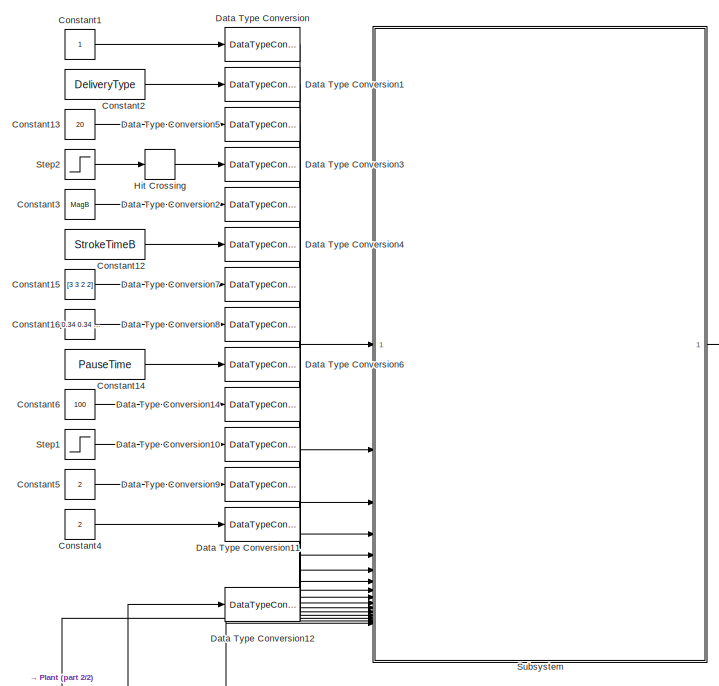
[diagram: root canvas - part 1/2, top left region]
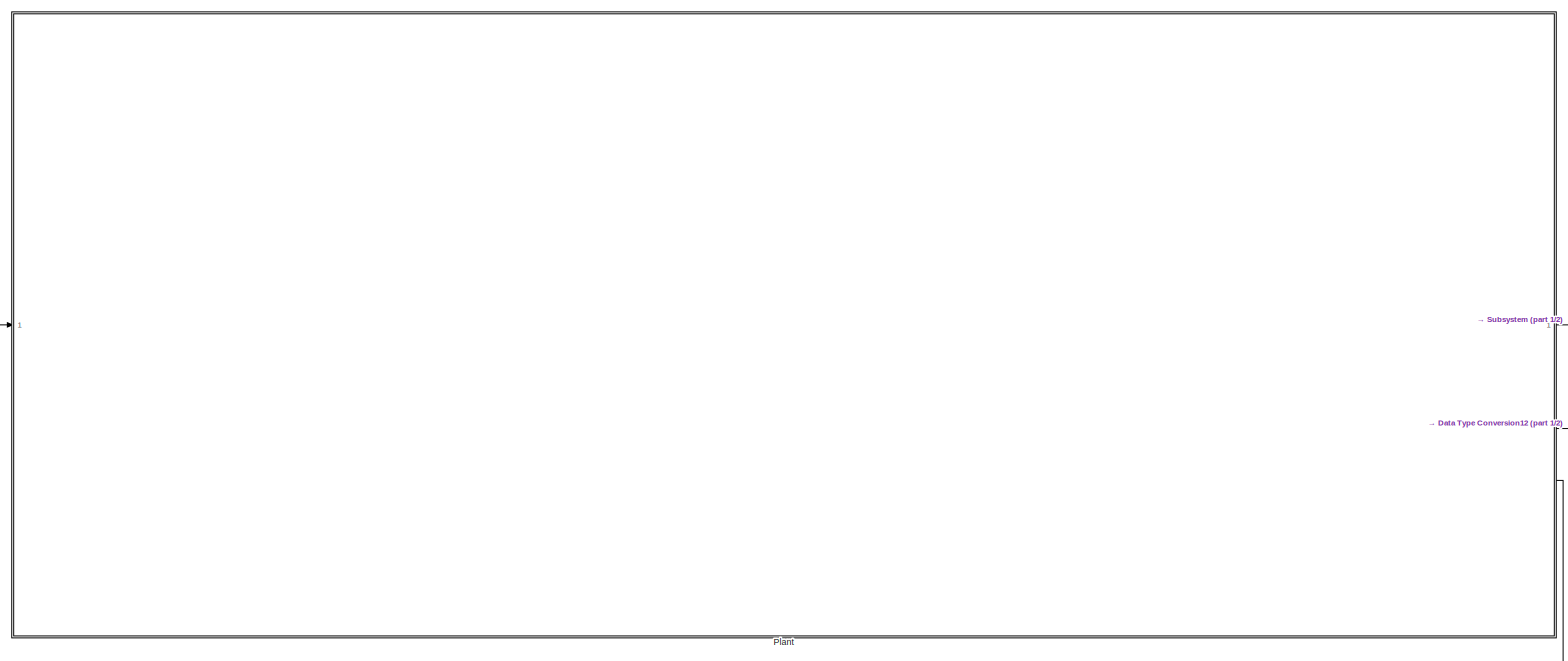
[diagram: root canvas - part 2/2, top center region]
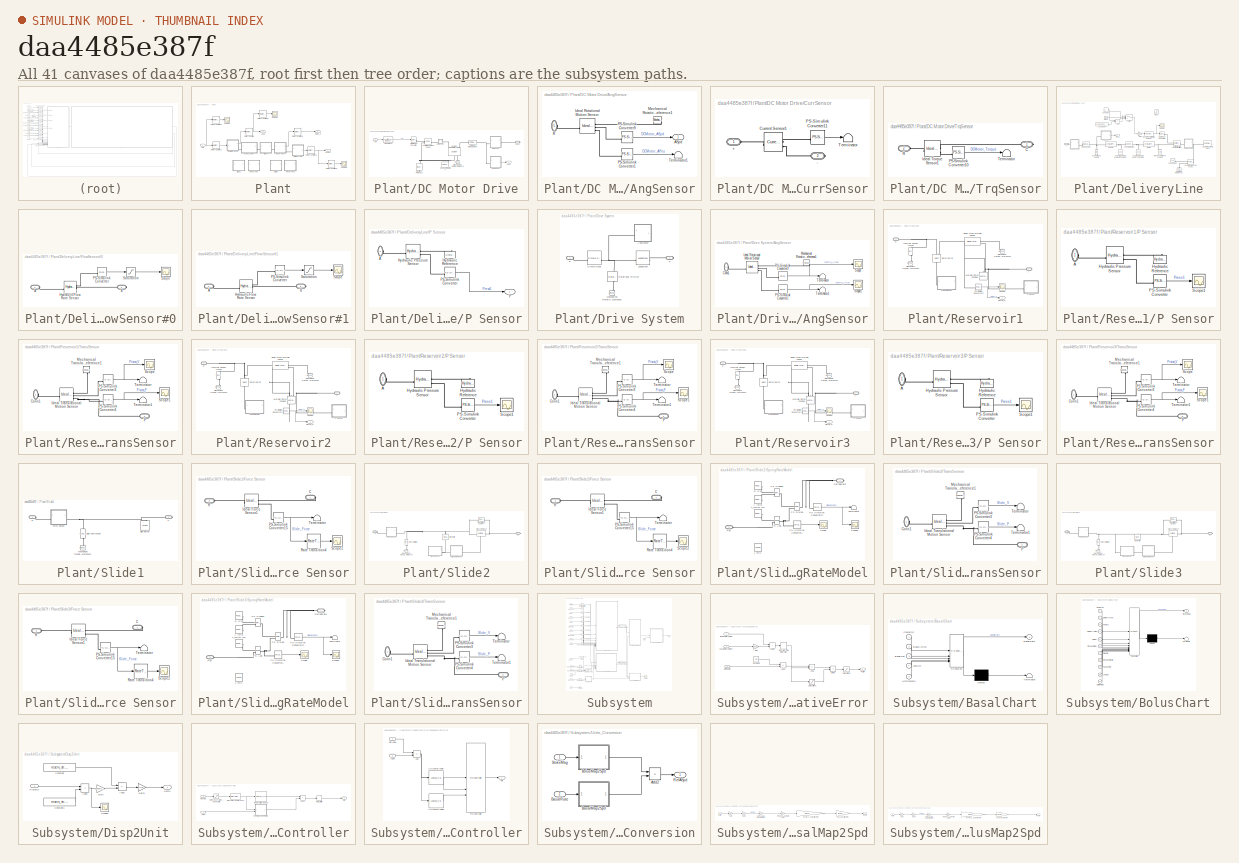
[diagram: thumbnail index - all 41 canvases of the model, root first then tree order]
MODEL slx_daa4485e387f
KIND model
CONFIG AbsTol = auto
CONFIG EnableMultiTasking = off
CONFIG FixedStep = 0.001
CONFIG MaxStep = 0.001
CONFIG MinStep = auto
CONFIG RelTol = 1e-5
CONFIG SampleTimeConstraint = Unconstrained
CONFIG SolverName = FixedStepDiscrete
CONFIG StartTime = 0
CONFIG StopTime = 0.013000000000000001
BLOCK [Constant] Constant1
BLOCK [Constant] Constant12
  Value = StrokeTimeB
BLOCK [Constant] Constant13
  Value = 20
BLOCK [Constant] Constant14
  Value = PauseTime
BLOCK [Constant] Constant15
  Value = [3 3 2 2]
BLOCK [Constant] Constant16
  Value = [0.34 0.34 0.34 0.98]*3
BLOCK [Constant] Constant2
  Value = DeliveryType
BLOCK [Constant] Constant3
  Value = MagB
BLOCK [Constant] Constant4
  Value = 2
BLOCK [Constant] Constant5
  Value = 2
BLOCK [Constant] Constant6
  Value = 100
BLOCK [DataTypeConversion] Data Type Conversion
  OutDataTypeStr = boolean
  RndMeth = Floor
  SaturateOnIntegerOverflow = off
BLOCK [DataTypeConversion] Data Type Conversion1
  OutDataTypeStr = int8
  RndMeth = Floor
  SaturateOnIntegerOverflow = off
BLOCK [DataTypeConversion] Data Type Conversion10
  OutDataTypeStr = boolean
  RndMeth = Floor
  SaturateOnIntegerOverflow = off
BLOCK [DataTypeConversion] Data Type Conversion11
  OutDataTypeStr = single
  RndMeth = Floor
  SaturateOnIntegerOverflow = off
BLOCK [DataTypeConversion] Data Type Conversion12
  OutDataTypeStr = single
  RndMeth = Floor
  SaturateOnIntegerOverflow = off
BLOCK [DataTypeConversion] Data Type Conversion14
  OutDataTypeStr = single
  RndMeth = Floor
  SaturateOnIntegerOverflow = off
BLOCK [DataTypeConversion] Data Type Conversion2
  OutDataTypeStr = single
  RndMeth = Floor
  SaturateOnIntegerOverflow = off
BLOCK [DataTypeConversion] Data Type Conversion3
  OutDataTypeStr = boolean
  RndMeth = Floor
  SaturateOnIntegerOverflow = off
BLOCK [DataTypeConversion] Data Type Conversion4
  OutDataTypeStr = single
  RndMeth = Floor
  SaturateOnIntegerOverflow = off
BLOCK [DataTypeConversion] Data Type Conversion5
  OutDataTypeStr = int8
  RndMeth = Floor
  SaturateOnIntegerOverflow = off
BLOCK [DataTypeConversion] Data Type Conversion6
  OutDataTypeStr = single
  RndMeth = Floor
  SaturateOnIntegerOverflow = off
BLOCK [DataTypeConversion] Data Type Conversion7
  OutDataTypeStr = single
  RndMeth = Floor
  SaturateOnIntegerOverflow = off
BLOCK [DataTypeConversion] Data Type Conversion8
  OutDataTypeStr = single
  RndMeth = Floor
  SaturateOnIntegerOverflow = off
BLOCK [DataTypeConversion] Data Type Conversion9
  OutDataTypeStr = single
  RndMeth = Floor
  SaturateOnIntegerOverflow = off
BLOCK [HitCross] Hit Crossing
  HitCrossingDirection = rising
  HitCrossingOffset = 0.5
BLOCK [SubSystem] Plant
BLOCK [Outport] Plant/ASpd
BLOCK [SubSystem] Plant/DC Motor Drive
BLOCK [Outport] Plant/DC Motor Drive/ASpd
BLOCK [SubSystem] Plant/DC Motor Drive/AngSensor
BLOCK [Outport] Plant/DC Motor Drive/AngSensor/ASpd
BLOCK [Reference] Plant/DC Motor Drive/AngSensor/Ideal Rotational Motion Sensor  REF=fl_lib/Mechanical/Mechanical Sensors/Ideal Rotational
Motion Sensor
  SourceBlock = fl_lib/Mechanical/Mechanical Sensors/Ideal Rotational\nMotion Sensor
  SourceType = Ideal Rotational\nMotion Sensor
BLOCK [Reference] Plant/DC Motor Drive/AngSensor/Mechanical Rotational Reference1  REF=fl_lib/Mechanical/Rotational Elements/Mechanical
Rotational Reference
  NameLocation = top
  SourceBlock = fl_lib/Mechanical/Rotational Elements/Mechanical\nRotational Reference
  SourceType = Mechanical\nRotational Reference
BLOCK [Reference] Plant/DC Motor Drive/AngSensor/PS-Simulink Converter1  REF=nesl_utility/PS-Simulink
Converter
  SourceBlock = nesl_utility/PS-Simulink\nConverter
  SourceType = PS-Simulink\nConverter
BLOCK [Reference] Plant/DC Motor Drive/AngSensor/PS-Simulink Converter9  REF=nesl_utility/PS-Simulink
Converter
  NameLocation = top
  SourceBlock = nesl_utility/PS-Simulink\nConverter
  SourceType = PS-Simulink\nConverter
BLOCK [PMIOPort] Plant/DC Motor Drive/AngSensor/R
  Side = Left
BLOCK [Terminator] Plant/DC Motor Drive/AngSensor/Terminator1
BLOCK [PMIOPort] Plant/DC Motor Drive/Conn
  Side = Right
BLOCK [Reference] Plant/DC Motor Drive/Controlled Voltage Source  REF=fl_lib/Electrical/Electrical Sources/Controlled Voltage
Source
  SourceBlock = fl_lib/Electrical/Electrical Sources/Controlled Voltage\nSource
  SourceType = Controlled Voltage\nSource
BLOCK [SubSystem] Plant/DC Motor Drive/CurrSensor
BLOCK [PMIOPort] Plant/DC Motor Drive/CurrSensor/+
  Side = Left
BLOCK [PMIOPort] Plant/DC Motor Drive/CurrSensor/-
  Port = 2
  Side = Right
BLOCK [Reference] Plant/DC Motor Drive/CurrSensor/Current Sensor1  REF=fl_lib/Electrical/Electrical Sensors/Current Sensor
  SourceBlock = fl_lib/Electrical/Electrical Sensors/Current Sensor
  SourceType = Current Sensor
BLOCK [Reference] Plant/DC Motor Drive/CurrSensor/PS-Simulink Converter11  REF=nesl_utility/PS-Simulink
Converter
  NameLocation = top
  SourceBlock = nesl_utility/PS-Simulink\nConverter
  SourceType = PS-Simulink\nConverter
BLOCK [Terminator] Plant/DC Motor Drive/CurrSensor/Terminator
BLOCK [Reference] Plant/DC Motor Drive/DC Motor  REF=ee_lib/Electromechanical/Brushed Motors/DC Motor
  NameLocation = right
  SourceBlock = ee_lib/Electromechanical/Brushed Motors/DC Motor
  SourceType = DC Motor
BLOCK [Reference] Plant/DC Motor Drive/Electrical Reference  REF=fl_lib/Electrical/Electrical Elements/Electrical Reference
  NameLocation = left
  SourceBlock = fl_lib/Electrical/Electrical Elements/Electrical Reference
  SourceType = Electrical Reference
BLOCK [Reference] Plant/DC Motor Drive/Mechanical Rotational Reference  REF=fl_lib/Mechanical/Rotational Elements/Mechanical
Rotational Reference
  NameLocation = right
  SourceBlock = fl_lib/Mechanical/Rotational Elements/Mechanical\nRotational Reference
  SourceType = Mechanical\nRotational Reference
BLOCK [Reference] Plant/DC Motor Drive/Simulink-PS Converter  REF=nesl_utility/Simulink-PS
Converter
  SourceBlock = nesl_utility/Simulink-PS\nConverter
  SourceType = Simulink-PS\nConverter
BLOCK [Reference] Plant/DC Motor Drive/Solver Configuration  REF=nesl_utility/Solver
Configuration
  SourceBlock = nesl_utility/Solver\nConfiguration
  SourceType = Solver\nConfiguration
BLOCK [Reference] Plant/DC Motor Drive/Torsional Spring-Damper  REF=sdl_lib/Couplings & Drives/Torsional
Spring-Damper
  SourceBlock = sdl_lib/Couplings & Drives/Torsional\nSpring-Damper
  SourceType = Torsional\nSpring-Damper
BLOCK [TransferFcn] Plant/DC Motor Drive/Transfer Fcn
  Denominator = [0.001 1]
BLOCK [SubSystem] Plant/DC Motor Drive/TrqSensor
BLOCK [PMIOPort] Plant/DC Motor Drive/TrqSensor/C
  Side = Right
BLOCK [Reference] Plant/DC Motor Drive/TrqSensor/Ideal Torque Sensor1  REF=fl_lib/Mechanical/Mechanical Sensors/Ideal Torque Sensor
  NameLocation = top
  SourceBlock = fl_lib/Mechanical/Mechanical Sensors/Ideal Torque Sensor
  SourceType = Ideal Torque Sensor
BLOCK [Reference] Plant/DC Motor Drive/TrqSensor/PS-Simulink Converter10  REF=nesl_utility/PS-Simulink
Converter
  SourceBlock = nesl_utility/PS-Simulink\nConverter
  SourceType = PS-Simulink\nConverter
BLOCK [PMIOPort] Plant/DC Motor Drive/TrqSensor/R
  Port = 2
  Side = Left
BLOCK [Terminator] Plant/DC Motor Drive/TrqSensor/Terminator
BLOCK [Inport] Plant/DC Motor Drive/Volt
BLOCK [SubSystem] Plant/DeliveryLine
BLOCK [PMIOPort] Plant/DeliveryLine/A
  Side = Left
BLOCK [Sum] Plant/DeliveryLine/Add
  IconShape = rectangular
  Inputs = +-
BLOCK [Clock] Plant/DeliveryLine/Clock
BLOCK [Constant] Plant/DeliveryLine/Constant
BLOCK [Reference] Plant/DeliveryLine/Constant Volume Hydraulic Chamber  REF=fl_lib/Hydraulic/Hydraulic Elements/Constant Volume
Hydraulic Chamber
  NameLocation = right
  SourceBlock = fl_lib/Hydraulic/Hydraulic Elements/Constant Volume\nHydraulic Chamber
  SourceType = Constant Volume\nHydraulic Chamber
BLOCK [Reference] Plant/DeliveryLine/Constant Volume Hydraulic Chamber1  REF=fl_lib/Hydraulic/Hydraulic Elements/Constant Volume
Hydraulic Chamber
  NameLocation = right
  SourceBlock = fl_lib/Hydraulic/Hydraulic Elements/Constant Volume\nHydraulic Chamber
  SourceType = Constant Volume\nHydraulic Chamber
BLOCK [Constant] Plant/DeliveryLine/Constant1
  Value = const_Occl_Pct
BLOCK [Reference] Plant/DeliveryLine/Custom Hydraulic Fluid1  REF=fl_lib/Hydraulic/Hydraulic Utilities/Custom Hydraulic
Fluid
  NameLocation = top
  SourceBlock = fl_lib/Hydraulic/Hydraulic Utilities/Custom Hydraulic\nFluid
  SourceType = Custom Hydraulic\nFluid
BLOCK [SubSystem] Plant/DeliveryLine/FlowSensor#0
BLOCK [PMIOPort] Plant/DeliveryLine/FlowSensor#0/A
  Side = Left
BLOCK [PMIOPort] Plant/DeliveryLine/FlowSensor#0/B
  Port = 2
  Side = Right
BLOCK [Reference] Plant/DeliveryLine/FlowSensor#0/Hydraulic Flow Rate Sensor  REF=fl_lib/Hydraulic/Hydraulic Sensors/Hydraulic Flow Rate
Sensor
  SourceBlock = fl_lib/Hydraulic/Hydraulic Sensors/Hydraulic Flow Rate\nSensor
  SourceType = Hydraulic Flow Rate\nSensor
BLOCK [Reference] Plant/DeliveryLine/FlowSensor#0/PS-Simulink Converter  REF=nesl_utility/PS-Simulink
Converter
  SourceBlock = nesl_utility/PS-Simulink\nConverter
  SourceType = PS-Simulink\nConverter
BLOCK [Saturate] Plant/DeliveryLine/FlowSensor#0/Saturation
  LowerLimit = 0
  UpperLimit = inf
BLOCK [Scope] Plant/DeliveryLine/FlowSensor#0/Scope
  Floating = off
  NumInputPorts = 1
  ScopeSpecificationString = Simulink.scopes.TimeScopeBlockCfg('CurrentConfiguration', extmgr.ConfigurationSet(extmgr.Configuration('Core','General UI',true),extmgr.Configuration('Core','Source UI',true),extmgr.Configuration('Sources','WiredSimulink',true,'DataLoggingVariableName','ScopeData4'),extmgr.Configuration('Visuals','Time Domain',true,'SerializedDisplays',{struct('MinYLimReal','-11.21441','MaxYLimReal','100.92966','Y...<+1485ch>
BLOCK [SubSystem] Plant/DeliveryLine/FlowSensor#1
BLOCK [PMIOPort] Plant/DeliveryLine/FlowSensor#1/A
  Side = Left
BLOCK [PMIOPort] Plant/DeliveryLine/FlowSensor#1/B
  Port = 2
  Side = Right
BLOCK [Reference] Plant/DeliveryLine/FlowSensor#1/Hydraulic Flow Rate Sensor  REF=fl_lib/Hydraulic/Hydraulic Sensors/Hydraulic Flow Rate
Sensor
  SourceBlock = fl_lib/Hydraulic/Hydraulic Sensors/Hydraulic Flow Rate\nSensor
  SourceType = Hydraulic Flow Rate\nSensor
BLOCK [Reference] Plant/DeliveryLine/FlowSensor#1/PS-Simulink Converter  REF=nesl_utility/PS-Simulink
Converter
  SourceBlock = nesl_utility/PS-Simulink\nConverter
  SourceType = PS-Simulink\nConverter
BLOCK [Saturate] Plant/DeliveryLine/FlowSensor#1/Saturation
  Commented = through
  LowerLimit = 0
  UpperLimit = 5000
BLOCK [Scope] Plant/DeliveryLine/FlowSensor#1/Scope
  Floating = off
  NumInputPorts = 1
  ScopeSpecificationString = Simulink.scopes.TimeScopeBlockCfg('CurrentConfiguration', extmgr.ConfigurationSet(extmgr.Configuration('Core','General UI',true),extmgr.Configuration('Core','Source UI',true),extmgr.Configuration('Sources','WiredSimulink',true,'DataLoggingVariableName','ScopeData4'),extmgr.Configuration('Visuals','Time Domain',true,'SerializedDisplays',{struct('MinYLimReal','-42.41201','MaxYLimReal','113.06629','Y...<+1486ch>
BLOCK [Gain] Plant/DeliveryLine/Gain
  Gain = reserv_str.Tubing.Area
BLOCK [Reference] Plant/DeliveryLine/Hydraulic Pressure Source  REF=fl_lib/Hydraulic/Hydraulic Sources/Hydraulic Pressure
Source
  SourceBlock = fl_lib/Hydraulic/Hydraulic Sources/Hydraulic Pressure\nSource
  SourceType = Hydraulic Pressure\nSource
BLOCK [Reference] Plant/DeliveryLine/Hydraulic Reference1  REF=fl_lib/Hydraulic/Hydraulic Elements/Hydraulic Reference
  NameLocation = right
  SourceBlock = fl_lib/Hydraulic/Hydraulic Elements/Hydraulic Reference
  SourceType = Hydraulic Reference
BLOCK [SubSystem] Plant/DeliveryLine/P Sensor
BLOCK [PMIOPort] Plant/DeliveryLine/P Sensor/A
  Side = Left
BLOCK [Reference] Plant/DeliveryLine/P Sensor/Hydraulic Pressure Sensor  REF=fl_lib/Hydraulic/Hydraulic Sensors/Hydraulic Pressure
Sensor
  SourceBlock = fl_lib/Hydraulic/Hydraulic Sensors/Hydraulic Pressure\nSensor
  SourceType = Hydraulic Pressure\nSensor
BLOCK [Reference] Plant/DeliveryLine/P Sensor/Hydraulic Reference  REF=fl_lib/Hydraulic/Hydraulic Elements/Hydraulic Reference
  NameLocation = right
  SourceBlock = fl_lib/Hydraulic/Hydraulic Elements/Hydraulic Reference
  SourceType = Hydraulic Reference
BLOCK [Outport] Plant/DeliveryLine/P Sensor/P
BLOCK [Reference] Plant/DeliveryLine/P Sensor/PS-Simulink Converter  REF=nesl_utility/PS-Simulink
Converter
  SourceBlock = nesl_utility/PS-Simulink\nConverter
  SourceType = PS-Simulink\nConverter
BLOCK [Reference] Plant/DeliveryLine/PS Constant  REF=fl_lib/Physical Signals/Sources/PS Constant
  SourceBlock = fl_lib/Physical Signals/Sources/PS Constant
  SourceType = PS Constant
BLOCK [Outport] Plant/DeliveryLine/Press
BLOCK [Scope] Plant/DeliveryLine/Scope
  Floating = off
  NumInputPorts = 1
  ScopeSpecificationString = Simulink.scopes.TimeScopeBlockCfg('CurrentConfiguration', extmgr.ConfigurationSet(extmgr.Configuration('Core','General UI',true),extmgr.Configuration('Core','Source UI',true),extmgr.Configuration('Sources','WiredSimulink',true,'DataLoggingVariableName','ScopeData1'),extmgr.Configuration('Visuals','Time Domain',true,'SerializedDisplays',{struct('MinYLimReal','-0.00000001','MaxYLimReal','0.00000013'...<+1418ch>
BLOCK [Reference] Plant/DeliveryLine/Simulink-PS Converter1  REF=nesl_utility/Simulink-PS
Converter
  SourceBlock = nesl_utility/Simulink-PS\nConverter
  SourceType = Simulink-PS\nConverter
BLOCK [Step] Plant/DeliveryLine/Step2
  After = 1-const_Occl_Pct
  Before = 1
  Commented = on
  SampleTime = 0
  Time = reserv_str.Occl.Time
BLOCK [Switch] Plant/DeliveryLine/Switch
  Criteria = u2 > Threshold
  InputSameDT = off
  SaturateOnIntegerOverflow = off
  Threshold = reserv_str.Occl.Time
BLOCK [Reference] Plant/DeliveryLine/Transfer Fcn (with initial outputs)  REF=simulink_extras/Additional
Linear/Transfer Fcn
(with initial outputs)
  SourceBlock = simulink_extras/Additional\nLinear/Transfer Fcn\n(with initial outputs)
  SourceType = Transfer Function with Initial Outputs
BLOCK [Reference] Plant/DeliveryLine/Variable Area Hydraulic Orifice  REF=fl_lib/Hydraulic/Hydraulic Elements/Variable Area
Hydraulic Orifice
  SourceBlock = fl_lib/Hydraulic/Hydraulic Elements/Variable Area\nHydraulic Orifice
  SourceType = Variable Area\nHydraulic Orifice
BLOCK [Reference] Plant/DeliveryLine/infusion set silicone septum  REF=sh_lib/Accumulators/Spring-Loaded
Accumulator
  NameLocation = right
  SourceBlock = sh_lib/Accumulators/Spring-Loaded\nAccumulator
  SourceType = Spring-Loaded\nAccumulator
BLOCK [Reference] Plant/DeliveryLine/needle  REF=sh_lib/Pipelines/Hydraulic Pipeline
  SourceBlock = sh_lib/Pipelines/Hydraulic Pipeline
  SourceType = Hydraulic Pipeline
BLOCK [Reference] Plant/DeliveryLine/needle to tubing  REF=sh_lib/Local Hydraulic
Resistances/Sudden Area Change
  SourceBlock = sh_lib/Local Hydraulic\nResistances/Sudden Area Change
  SourceType = Sudden Area Change
BLOCK [Reference] Plant/DeliveryLine/pcap silicone septum  REF=sh_lib/Accumulators/Spring-Loaded
Accumulator
  NameLocation = right
  SourceBlock = sh_lib/Accumulators/Spring-Loaded\nAccumulator
  SourceType = Spring-Loaded\nAccumulator
BLOCK [Reference] Plant/DeliveryLine/res to needle3  REF=sh_lib/Local Hydraulic
Resistances/Gradual Area Change
  SourceBlock = sh_lib/Local Hydraulic\nResistances/Gradual Area Change
  SourceType = Gradual Area Change
BLOCK [Reference] Plant/DeliveryLine/tubing  REF=sh_lib/Pipelines/Hydraulic Pipeline
  SourceBlock = sh_lib/Pipelines/Hydraulic Pipeline
  SourceType = Hydraulic Pipeline
BLOCK [SubSystem] Plant/Drive System
BLOCK [SubSystem] Plant/Drive System/AngSensor
BLOCK [PMIOPort] Plant/Drive System/AngSensor/Conn1
  NameLocation = top
  Side = Left
BLOCK [Reference] Plant/Drive System/AngSensor/Ideal Rotational Motion Sensor  REF=fl_lib/Mechanical/Mechanical Sensors/Ideal Rotational
Motion Sensor
  SourceBlock = fl_lib/Mechanical/Mechanical Sensors/Ideal Rotational\nMotion Sensor
  SourceType = Ideal Rotational\nMotion Sensor
BLOCK [Reference] Plant/Drive System/AngSensor/Mechanical Rotational Reference1  REF=fl_lib/Mechanical/Rotational Elements/Mechanical
Rotational Reference
  NameLocation = top
  SourceBlock = fl_lib/Mechanical/Rotational Elements/Mechanical\nRotational Reference
  SourceType = Mechanical\nRotational Reference
BLOCK [Reference] Plant/Drive System/AngSensor/PS-Simulink Converter1  REF=nesl_utility/PS-Simulink
Converter
  SourceBlock = nesl_utility/PS-Simulink\nConverter
  SourceType = PS-Simulink\nConverter
BLOCK [Reference] Plant/Drive System/AngSensor/PS-Simulink Converter9  REF=nesl_utility/PS-Simulink
Converter
  NameLocation = top
  SourceBlock = nesl_utility/PS-Simulink\nConverter
  SourceType = PS-Simulink\nConverter
BLOCK [Scope] Plant/Drive System/AngSensor/Scope
  Floating = off
  NumInputPorts = 1
  ScopeSpecificationString = Simulink.scopes.TimeScopeBlockCfg('CurrentConfiguration', extmgr.ConfigurationSet(extmgr.Configuration('Core','General UI',true),extmgr.Configuration('Core','Source UI',true),extmgr.Configuration('Sources','WiredSimulink',true),extmgr.Configuration('Visuals','Time Domain',true,'SerializedDisplays',{struct('MinYLimReal','-1.50405','MaxYLimReal','0.16757','YLabelReal','','MinYLimMag','0.00000','MaxY...<+1660ch>
BLOCK [Scope] Plant/Drive System/AngSensor/Scope1
  Floating = off
  NumInputPorts = 1
  ScopeSpecificationString = Simulink.scopes.TimeScopeBlockCfg('CurrentConfiguration', extmgr.ConfigurationSet(extmgr.Configuration('Core','General UI',true),extmgr.Configuration('Core','Source UI',true),extmgr.Configuration('Sources','WiredSimulink',true,'DataLoggingVariableName','ScopeData1'),extmgr.Configuration('Visuals','Time Domain',true,'SerializedDisplays',{struct('MinYLimReal','-187.69904','MaxYLimReal','20.85545','Y...<+1383ch>
BLOCK [Terminator] Plant/Drive System/AngSensor/Terminator
BLOCK [Terminator] Plant/Drive System/AngSensor/Terminator1
BLOCK [PMIOPort] Plant/Drive System/B
  Side = Left
BLOCK [Reference] Plant/Drive System/Leadscrew  REF=sdl_lib/Gears/Rotational-
Translational/Leadscrew
  SourceBlock = sdl_lib/Gears/Rotational-\nTranslational/Leadscrew
  SourceType = Leadscrew
BLOCK [Reference] Plant/Drive System/Mechanical Rotational Reference2  REF=fl_lib/Mechanical/Rotational Elements/Mechanical
Rotational Reference
  NameLocation = right
  SourceBlock = fl_lib/Mechanical/Rotational Elements/Mechanical\nRotational Reference
  SourceType = Mechanical\nRotational Reference
BLOCK [PMIOPort] Plant/Drive System/N
  Port = 2
  Side = Right
BLOCK [Reference] Plant/Drive System/Rotational Friction  REF=fl_lib/Mechanical/Rotational Elements/Rotational Friction
  NameLocation = right
  SourceBlock = fl_lib/Mechanical/Rotational Elements/Rotational Friction
  SourceType = Rotational Friction
BLOCK [Reference] Plant/Drive System/Simple Gear  REF=sdl_lib/Gears/Simple Gear
  SourceBlock = sdl_lib/Gears/Simple Gear
  SourceType = Simple Gear
BLOCK [Outport] Plant/Piston_P
  Port = 2
BLOCK [Outport] Plant/Press
  Port = 3
BLOCK [RateTransition] Plant/Rate Transition
  OutPortSampleTime = 0.001
BLOCK [RateTransition] Plant/Rate Transition1
BLOCK [RateTransition] Plant/Rate Transition2
  OutPortSampleTime = 0.001
BLOCK [RateTransition] Plant/Rate Transition3
  OutPortSampleTime = 0.001
BLOCK [RateTransition] Plant/Rate Transition4
  OutPortSampleTime = 0.01
BLOCK [RateTransition] Plant/Rate Transition5
  OutPortSampleTime = 0.01
BLOCK [RateTransition] Plant/Rate Transition6
  OutPortSampleTime = 0.01
BLOCK [SubSystem] Plant/Reservoir1
  Commented = on
BLOCK [PMIOPort] Plant/Reservoir1/A
  Port = 2
  Side = Right
BLOCK [Reference] Plant/Reservoir1/Hydraulic Piston Chamber  REF=fl_lib/Hydraulic/Hydraulic Elements/Hydraulic Piston
Chamber
  Commented = on
  NameLocation = right
  SourceBlock = fl_lib/Hydraulic/Hydraulic Elements/Hydraulic Piston\nChamber
  SourceType = Hydraulic Piston\nChamber
BLOCK [Reference] Plant/Reservoir1/Mechanical Translational Reference1  REF=fl_lib/Mechanical/Translational
Elements/Mechanical
Translational
Reference
  NameLocation = right
  SourceBlock = fl_lib/Mechanical/Translational\nElements/Mechanical\nTranslational\nReference
  SourceType = Mechanical\nTranslational\nReference
BLOCK [Reference] Plant/Reservoir1/Mechanical Translational Reference2  REF=fl_lib/Mechanical/Translational
Elements/Mechanical
Translational
Reference
  NameLocation = right
  SourceBlock = fl_lib/Mechanical/Translational\nElements/Mechanical\nTranslational\nReference
  SourceType = Mechanical\nTranslational\nReference
BLOCK [SubSystem] Plant/Reservoir1/P Sensor
BLOCK [PMIOPort] Plant/Reservoir1/P Sensor/A
  Side = Left
BLOCK [Reference] Plant/Reservoir1/P Sensor/Hydraulic Pressure Sensor  REF=fl_lib/Hydraulic/Hydraulic Sensors/Hydraulic Pressure
Sensor
  SourceBlock = fl_lib/Hydraulic/Hydraulic Sensors/Hydraulic Pressure\nSensor
  SourceType = Hydraulic Pressure\nSensor
BLOCK [Reference] Plant/Reservoir1/P Sensor/Hydraulic Reference  REF=fl_lib/Hydraulic/Hydraulic Elements/Hydraulic Reference
  NameLocation = right
  SourceBlock = fl_lib/Hydraulic/Hydraulic Elements/Hydraulic Reference
  SourceType = Hydraulic Reference
BLOCK [Reference] Plant/Reservoir1/P Sensor/PS-Simulink Converter  REF=nesl_utility/PS-Simulink
Converter
  SourceBlock = nesl_utility/PS-Simulink\nConverter
  SourceType = PS-Simulink\nConverter
BLOCK [Scope] Plant/Reservoir1/P Sensor/Scope1
  Floating = off
  NumInputPorts = 1
  ScopeSpecificationString = Simulink.scopes.TimeScopeBlockCfg('CurrentConfiguration', extmgr.ConfigurationSet(extmgr.Configuration('Core','General UI',true),extmgr.Configuration('Core','Source UI',true),extmgr.Configuration('Sources','WiredSimulink',true),extmgr.Configuration('Visuals','Time Domain',true,'SerializedDisplays',{struct('MinYLimReal','93703.89588','MaxYLimReal','119658.32558','YLabelReal','','MinYLimMag','93703....<+1406ch>  <repeated x3 — deduplicated; at blocks: Scope1>
BLOCK [Reference] Plant/Reservoir1/PS-Simulink Converter2  REF=nesl_utility/PS-Simulink
Converter
  SourceBlock = nesl_utility/PS-Simulink\nConverter
  SourceType = PS-Simulink\nConverter
BLOCK [Outport] Plant/Reservoir1/Piston_P
BLOCK [PMIOPort] Plant/Reservoir1/R
  Side = Left
BLOCK [Scope] Plant/Reservoir1/Scope2
  Floating = off
  NumInputPorts = 1
  ScopeSpecificationString = Simulink.scopes.TimeScopeBlockCfg('CurrentConfiguration', extmgr.ConfigurationSet(extmgr.Configuration('Core','General UI',true),extmgr.Configuration('Core','Source UI',true),extmgr.Configuration('Sources','WiredSimulink',true,'DataLoggingVariableName','ScopeData6'),extmgr.Configuration('Visuals','Time Domain',true,'SerializedDisplays',{struct('MinYLimReal','-26.58008','MaxYLimReal','-26.5363','YL...<+1728ch>  <repeated x3 — deduplicated; at blocks: Scope2>
BLOCK [Reference] Plant/Reservoir1/Single-Acting Hydraulic Cylinder  REF=sh_lib/Hydraulic Cylinders/Single-Acting
Hydraulic Cylinder
  SourceBlock = sh_lib/Hydraulic Cylinders/Single-Acting\nHydraulic Cylinder
  SourceType = Single-Acting\nHydraulic Cylinder
BLOCK [SubSystem] Plant/Reservoir1/TransSensor
BLOCK [PMIOPort] Plant/Reservoir1/TransSensor/Conn1
  Side = Left
BLOCK [Reference] Plant/Reservoir1/TransSensor/Ideal Translational Motion Sensor  REF=fl_lib/Mechanical/Mechanical Sensors/Ideal Translational
Motion Sensor
  SourceBlock = fl_lib/Mechanical/Mechanical Sensors/Ideal Translational\nMotion Sensor
  SourceType = Ideal Translational\nMotion Sensor
BLOCK [Reference] Plant/Reservoir1/TransSensor/Mechanical Translational Reference1  REF=fl_lib/Mechanical/Translational
Elements/Mechanical
Translational
Reference
  NameLocation = left
  SourceBlock = fl_lib/Mechanical/Translational\nElements/Mechanical\nTranslational\nReference
  SourceType = Mechanical\nTranslational\nReference
BLOCK [PMIOPort] Plant/Reservoir1/TransSensor/P
  Port = 2
  Side = Right
BLOCK [Reference] Plant/Reservoir1/TransSensor/PS-Simulink Converter3  REF=nesl_utility/PS-Simulink
Converter
  SourceBlock = nesl_utility/PS-Simulink\nConverter
  SourceType = PS-Simulink\nConverter
BLOCK [Reference] Plant/Reservoir1/TransSensor/PS-Simulink Converter4  REF=nesl_utility/PS-Simulink
Converter
  SourceBlock = nesl_utility/PS-Simulink\nConverter
  SourceType = PS-Simulink\nConverter
BLOCK [Scope] Plant/Reservoir1/TransSensor/Scope
  Floating = off
  NumInputPorts = 1
  ScopeSpecificationString = Simulink.scopes.TimeScopeBlockCfg('CurrentConfiguration', extmgr.ConfigurationSet(extmgr.Configuration('Core','General UI',true),extmgr.Configuration('Core','Source UI',true),extmgr.Configuration('Sources','WiredSimulink',true,'DataLoggingVariableName','ScopeData4'),extmgr.Configuration('Visuals','Time Domain',true,'SerializedDisplays',{struct('MinYLimReal','-0.20888','MaxYLimReal','1.35196','YLab...<+1470ch>  <repeated x3 — deduplicated; at blocks: Scope>
BLOCK [Scope] Plant/Reservoir1/TransSensor/Scope1
  Floating = off
  NumInputPorts = 1
  ScopeSpecificationString = Simulink.scopes.TimeScopeBlockCfg('CurrentConfiguration', extmgr.ConfigurationSet(extmgr.Configuration('Core','General UI',true),extmgr.Configuration('Core','Source UI',true),extmgr.Configuration('Sources','WiredSimulink',true,'DataLoggingVariableName','ScopeData2'),extmgr.Configuration('Visuals','Time Domain',true,'SerializedDisplays',{struct('MinYLimReal','-0.01896','MaxYLimReal','0.16359','YLab...<+1438ch>  <repeated x3 — deduplicated; at blocks: Scope1>
BLOCK [Terminator] Plant/Reservoir1/TransSensor/Terminator
BLOCK [Terminator] Plant/Reservoir1/TransSensor/Terminator1
BLOCK [Reference] Plant/Reservoir1/piston inertia  REF=fl_lib/Mechanical/Translational
Elements/Mass
  NameLocation = right
  SourceBlock = fl_lib/Mechanical/Translational\nElements/Mass
  SourceType = Mass
BLOCK [Reference] Plant/Reservoir1/reservoir plunger friction  REF=fl_lib/Mechanical/Translational
Elements/Translational
Friction
  NameLocation = left
  SourceBlock = fl_lib/Mechanical/Translational\nElements/Translational\nFriction
  SourceType = Translational\nFriction
BLOCK [SubSystem] Plant/Reservoir2
  Commented = on
BLOCK [PMIOPort] Plant/Reservoir2/A
  Port = 2
  Side = Right
BLOCK [Reference] Plant/Reservoir2/Hydraulic Piston Chamber  REF=fl_lib/Hydraulic/Hydraulic Elements/Hydraulic Piston
Chamber
  Commented = on
  NameLocation = right
  SourceBlock = fl_lib/Hydraulic/Hydraulic Elements/Hydraulic Piston\nChamber
  SourceType = Hydraulic Piston\nChamber
BLOCK [Reference] Plant/Reservoir2/Mechanical Translational Reference1  REF=fl_lib/Mechanical/Translational
Elements/Mechanical
Translational
Reference
  NameLocation = right
  SourceBlock = fl_lib/Mechanical/Translational\nElements/Mechanical\nTranslational\nReference
  SourceType = Mechanical\nTranslational\nReference
BLOCK [Reference] Plant/Reservoir2/Mechanical Translational Reference2  REF=fl_lib/Mechanical/Translational
Elements/Mechanical
Translational
Reference
  NameLocation = right
  SourceBlock = fl_lib/Mechanical/Translational\nElements/Mechanical\nTranslational\nReference
  SourceType = Mechanical\nTranslational\nReference
BLOCK [SubSystem] Plant/Reservoir2/P Sensor
BLOCK [PMIOPort] Plant/Reservoir2/P Sensor/A
  Side = Left
BLOCK [Reference] Plant/Reservoir2/P Sensor/Hydraulic Pressure Sensor  REF=fl_lib/Hydraulic/Hydraulic Sensors/Hydraulic Pressure
Sensor
  SourceBlock = fl_lib/Hydraulic/Hydraulic Sensors/Hydraulic Pressure\nSensor
  SourceType = Hydraulic Pressure\nSensor
BLOCK [Reference] Plant/Reservoir2/P Sensor/Hydraulic Reference  REF=fl_lib/Hydraulic/Hydraulic Elements/Hydraulic Reference
  NameLocation = right
  SourceBlock = fl_lib/Hydraulic/Hydraulic Elements/Hydraulic Reference
  SourceType = Hydraulic Reference
BLOCK [Reference] Plant/Reservoir2/P Sensor/PS-Simulink Converter  REF=nesl_utility/PS-Simulink
Converter
  SourceBlock = nesl_utility/PS-Simulink\nConverter
  SourceType = PS-Simulink\nConverter
BLOCK [Scope] Plant/Reservoir2/P Sensor/Scope1
  Floating = off
  NumInputPorts = 1
BLOCK [Reference] Plant/Reservoir2/PS-Simulink Converter2  REF=nesl_utility/PS-Simulink
Converter
  SourceBlock = nesl_utility/PS-Simulink\nConverter
  SourceType = PS-Simulink\nConverter
BLOCK [Outport] Plant/Reservoir2/Piston_P
BLOCK [PMIOPort] Plant/Reservoir2/R
  Side = Left
BLOCK [Scope] Plant/Reservoir2/Scope2
  Floating = off
  NumInputPorts = 1
BLOCK [Reference] Plant/Reservoir2/Single-Acting Hydraulic Cylinder  REF=sh_lib/Hydraulic Cylinders/Single-Acting
Hydraulic Cylinder
  SourceBlock = sh_lib/Hydraulic Cylinders/Single-Acting\nHydraulic Cylinder
  SourceType = Single-Acting\nHydraulic Cylinder
BLOCK [SubSystem] Plant/Reservoir2/TransSensor
BLOCK [PMIOPort] Plant/Reservoir2/TransSensor/Conn1
  Side = Left
BLOCK [Reference] Plant/Reservoir2/TransSensor/Ideal Translational Motion Sensor  REF=fl_lib/Mechanical/Mechanical Sensors/Ideal Translational
Motion Sensor
  SourceBlock = fl_lib/Mechanical/Mechanical Sensors/Ideal Translational\nMotion Sensor
  SourceType = Ideal Translational\nMotion Sensor
BLOCK [Reference] Plant/Reservoir2/TransSensor/Mechanical Translational Reference1  REF=fl_lib/Mechanical/Translational
Elements/Mechanical
Translational
Reference
  NameLocation = left
  SourceBlock = fl_lib/Mechanical/Translational\nElements/Mechanical\nTranslational\nReference
  SourceType = Mechanical\nTranslational\nReference
BLOCK [PMIOPort] Plant/Reservoir2/TransSensor/P
  Port = 2
  Side = Right
BLOCK [Reference] Plant/Reservoir2/TransSensor/PS-Simulink Converter3  REF=nesl_utility/PS-Simulink
Converter
  SourceBlock = nesl_utility/PS-Simulink\nConverter
  SourceType = PS-Simulink\nConverter
BLOCK [Reference] Plant/Reservoir2/TransSensor/PS-Simulink Converter4  REF=nesl_utility/PS-Simulink
Converter
  SourceBlock = nesl_utility/PS-Simulink\nConverter
  SourceType = PS-Simulink\nConverter
BLOCK [Scope] Plant/Reservoir2/TransSensor/Scope
  Floating = off
  NumInputPorts = 1
BLOCK [Scope] Plant/Reservoir2/TransSensor/Scope1
  Floating = off
  NumInputPorts = 1
BLOCK [Terminator] Plant/Reservoir2/TransSensor/Terminator
BLOCK [Terminator] Plant/Reservoir2/TransSensor/Terminator1
BLOCK [Reference] Plant/Reservoir2/piston inertia  REF=fl_lib/Mechanical/Translational
Elements/Mass
  NameLocation = right
  SourceBlock = fl_lib/Mechanical/Translational\nElements/Mass
  SourceType = Mass
BLOCK [Reference] Plant/Reservoir2/reservoir plunger friction  REF=fl_lib/Mechanical/Translational
Elements/Translational
Friction
  NameLocation = left
  SourceBlock = fl_lib/Mechanical/Translational\nElements/Translational\nFriction
  SourceType = Translational\nFriction
BLOCK [SubSystem] Plant/Reservoir3
BLOCK [PMIOPort] Plant/Reservoir3/A
  Port = 2
  Side = Right
BLOCK [Reference] Plant/Reservoir3/Hydraulic Piston Chamber  REF=fl_lib/Hydraulic/Hydraulic Elements/Hydraulic Piston
Chamber
  Commented = on
  NameLocation = right
  SourceBlock = fl_lib/Hydraulic/Hydraulic Elements/Hydraulic Piston\nChamber
  SourceType = Hydraulic Piston\nChamber
BLOCK [Reference] Plant/Reservoir3/Mechanical Translational Reference1  REF=fl_lib/Mechanical/Translational
Elements/Mechanical
Translational
Reference
  NameLocation = right
  SourceBlock = fl_lib/Mechanical/Translational\nElements/Mechanical\nTranslational\nReference
  SourceType = Mechanical\nTranslational\nReference
BLOCK [Reference] Plant/Reservoir3/Mechanical Translational Reference2  REF=fl_lib/Mechanical/Translational
Elements/Mechanical
Translational
Reference
  NameLocation = right
  SourceBlock = fl_lib/Mechanical/Translational\nElements/Mechanical\nTranslational\nReference
  SourceType = Mechanical\nTranslational\nReference
BLOCK [SubSystem] Plant/Reservoir3/P Sensor
BLOCK [PMIOPort] Plant/Reservoir3/P Sensor/A
  Side = Left
BLOCK [Reference] Plant/Reservoir3/P Sensor/Hydraulic Pressure Sensor  REF=fl_lib/Hydraulic/Hydraulic Sensors/Hydraulic Pressure
Sensor
  SourceBlock = fl_lib/Hydraulic/Hydraulic Sensors/Hydraulic Pressure\nSensor
  SourceType = Hydraulic Pressure\nSensor
BLOCK [Reference] Plant/Reservoir3/P Sensor/Hydraulic Reference  REF=fl_lib/Hydraulic/Hydraulic Elements/Hydraulic Reference
  NameLocation = right
  SourceBlock = fl_lib/Hydraulic/Hydraulic Elements/Hydraulic Reference
  SourceType = Hydraulic Reference
BLOCK [Reference] Plant/Reservoir3/P Sensor/PS-Simulink Converter  REF=nesl_utility/PS-Simulink
Converter
  SourceBlock = nesl_utility/PS-Simulink\nConverter
  SourceType = PS-Simulink\nConverter
BLOCK [Scope] Plant/Reservoir3/P Sensor/Scope1
  Floating = off
  NumInputPorts = 1
BLOCK [Reference] Plant/Reservoir3/PS-Simulink Converter2  REF=nesl_utility/PS-Simulink
Converter
  SourceBlock = nesl_utility/PS-Simulink\nConverter
  SourceType = PS-Simulink\nConverter
BLOCK [Outport] Plant/Reservoir3/Piston_P
BLOCK [PMIOPort] Plant/Reservoir3/R
  Side = Left
BLOCK [Scope] Plant/Reservoir3/Scope2
  Floating = off
  NumInputPorts = 1
BLOCK [Reference] Plant/Reservoir3/Single-Acting Hydraulic Cylinder  REF=sh_lib/Hydraulic Cylinders/Single-Acting
Hydraulic Cylinder
  SourceBlock = sh_lib/Hydraulic Cylinders/Single-Acting\nHydraulic Cylinder
  SourceType = Single-Acting\nHydraulic Cylinder
BLOCK [SubSystem] Plant/Reservoir3/TransSensor
BLOCK [PMIOPort] Plant/Reservoir3/TransSensor/Conn1
  Side = Left
BLOCK [Reference] Plant/Reservoir3/TransSensor/Ideal Translational Motion Sensor  REF=fl_lib/Mechanical/Mechanical Sensors/Ideal Translational
Motion Sensor
  SourceBlock = fl_lib/Mechanical/Mechanical Sensors/Ideal Translational\nMotion Sensor
  SourceType = Ideal Translational\nMotion Sensor
BLOCK [Reference] Plant/Reservoir3/TransSensor/Mechanical Translational Reference1  REF=fl_lib/Mechanical/Translational
Elements/Mechanical
Translational
Reference
  NameLocation = left
  SourceBlock = fl_lib/Mechanical/Translational\nElements/Mechanical\nTranslational\nReference
  SourceType = Mechanical\nTranslational\nReference
BLOCK [PMIOPort] Plant/Reservoir3/TransSensor/P
  Port = 2
  Side = Right
BLOCK [Reference] Plant/Reservoir3/TransSensor/PS-Simulink Converter3  REF=nesl_utility/PS-Simulink
Converter
  SourceBlock = nesl_utility/PS-Simulink\nConverter
  SourceType = PS-Simulink\nConverter
BLOCK [Reference] Plant/Reservoir3/TransSensor/PS-Simulink Converter4  REF=nesl_utility/PS-Simulink
Converter
  SourceBlock = nesl_utility/PS-Simulink\nConverter
  SourceType = PS-Simulink\nConverter
BLOCK [Scope] Plant/Reservoir3/TransSensor/Scope
  Floating = off
  NumInputPorts = 1
BLOCK [Scope] Plant/Reservoir3/TransSensor/Scope1
  Floating = off
  NumInputPorts = 1
BLOCK [Terminator] Plant/Reservoir3/TransSensor/Terminator
BLOCK [Terminator] Plant/Reservoir3/TransSensor/Terminator1
BLOCK [Reference] Plant/Reservoir3/piston inertia  REF=fl_lib/Mechanical/Translational
Elements/Mass
  NameLocation = right
  SourceBlock = fl_lib/Mechanical/Translational\nElements/Mass
  SourceType = Mass
BLOCK [Reference] Plant/Reservoir3/reservoir plunger friction  REF=fl_lib/Mechanical/Translational
Elements/Translational
Friction
  NameLocation = left
  SourceBlock = fl_lib/Mechanical/Translational\nElements/Translational\nFriction
  SourceType = Translational\nFriction
BLOCK [Scope] Plant/Scope1
  Floating = off
  NumInputPorts = 1
  ScopeSpecificationString = Simulink.scopes.TimeScopeBlockCfg('CurrentConfiguration', extmgr.ConfigurationSet(extmgr.Configuration('Core','General UI',true),extmgr.Configuration('Core','Source UI',true),extmgr.Configuration('Sources','WiredSimulink',true,'DataLoggingVariableName','Result_Press','DataLogging',true,'DataLoggingSaveFormat','Array'),extmgr.Configuration('Visuals','Time Domain',true,'SerializedDisplays',{struct('...<+1666ch>
BLOCK [Scope] Plant/Scope2
  Floating = off
  NumInputPorts = 1
  ScopeSpecificationString = Simulink.scopes.TimeScopeBlockCfg('CurrentConfiguration', extmgr.ConfigurationSet(extmgr.Configuration('Core','General UI',true),extmgr.Configuration('Core','Source UI',true),extmgr.Configuration('Sources','WiredSimulink',true,'DataLoggingVariableName','Result_MotorSpeed','DataLogging',true,'DataLoggingSaveFormat','Array'),extmgr.Configuration('Visuals','Time Domain',true,'SerializedDisplays',{str...<+1631ch>
BLOCK [Scope] Plant/Scope3
  Floating = off
  NumInputPorts = 1
  ScopeSpecificationString = Simulink.scopes.TimeScopeBlockCfg('CurrentConfiguration', extmgr.ConfigurationSet(extmgr.Configuration('Core','General UI',true),extmgr.Configuration('Core','Source UI',true),extmgr.Configuration('Sources','WiredSimulink',true,'DataLoggingVariableName','Result_MotorVoltage','DataLogging',true,'DataLoggingSaveFormat','Array'),extmgr.Configuration('Visuals','Time Domain',true,'SerializedDisplays',{s...<+1796ch>
BLOCK [SubSystem] Plant/Slide1
  Commented = on
BLOCK [PMIOPort] Plant/Slide1/C
  Port = 2
  Side = Right
BLOCK [SubSystem] Plant/Slide1/Force Sensor
BLOCK [PMIOPort] Plant/Slide1/Force Sensor/C
  Side = Right
BLOCK [Reference] Plant/Slide1/Force Sensor/Ideal Force Sensor1  REF=fl_lib/Mechanical/Mechanical Sensors/Ideal Force Sensor
  NameLocation = top
  SourceBlock = fl_lib/Mechanical/Mechanical Sensors/Ideal Force Sensor
  SourceType = Ideal Force Sensor
BLOCK [Reference] Plant/Slide1/Force Sensor/PS-Simulink Converter15  REF=nesl_utility/PS-Simulink
Converter
  SourceBlock = nesl_utility/PS-Simulink\nConverter
  SourceType = PS-Simulink\nConverter
BLOCK [PMIOPort] Plant/Slide1/Force Sensor/R
  Port = 2
  Side = Left
BLOCK [RateTransition] Plant/Slide1/Force Sensor/Rate Transition4
  OutPortSampleTime = 0.01
BLOCK [Scope] Plant/Slide1/Force Sensor/Scope2
  Floating = off
  NumInputPorts = 1
  ScopeSpecificationString = Simulink.scopes.TimeScopeBlockCfg('CurrentConfiguration', extmgr.ConfigurationSet(extmgr.Configuration('Core','General UI',true),extmgr.Configuration('Core','Source UI',true),extmgr.Configuration('Sources','WiredSimulink',true,'DataLoggingVariableName','Result_Force','DataLogging',true,'DataLoggingSaveFormat','Array'),extmgr.Configuration('Visuals','Time Domain',true,'SerializedDisplays',{struct('...<+1653ch>  <repeated x3 — deduplicated; at blocks: Scope2>
BLOCK [Terminator] Plant/Slide1/Force Sensor/Terminator
BLOCK [Reference] Plant/Slide1/Mechanical Translational Reference7  REF=fl_lib/Mechanical/Translational
Elements/Mechanical
Translational
Reference
  NameLocation = right
  SourceBlock = fl_lib/Mechanical/Translational\nElements/Mechanical\nTranslational\nReference
  SourceType = Mechanical\nTranslational\nReference
BLOCK [PMIOPort] Plant/Slide1/R
  Side = Left
BLOCK [Reference] Plant/Slide1/slide inertia  REF=fl_lib/Mechanical/Translational
Elements/Mass
  Commented = on
  NameLocation = right
  SourceBlock = fl_lib/Mechanical/Translational\nElements/Mass
  SourceType = Mass
BLOCK [Reference] Plant/Slide1/slide seal friction  REF=fl_lib/Mechanical/Translational
Elements/Translational
Friction
  NameLocation = right
  SourceBlock = fl_lib/Mechanical/Translational\nElements/Translational\nFriction
  SourceType = Translational\nFriction
BLOCK [SubSystem] Plant/Slide2
  Commented = on
BLOCK [PMIOPort] Plant/Slide2/C
  Port = 2
  Side = Right
BLOCK [SubSystem] Plant/Slide2/Force Sensor
BLOCK [PMIOPort] Plant/Slide2/Force Sensor/C
  Side = Right
BLOCK [Reference] Plant/Slide2/Force Sensor/Ideal Force Sensor1  REF=fl_lib/Mechanical/Mechanical Sensors/Ideal Force Sensor
  NameLocation = top
  SourceBlock = fl_lib/Mechanical/Mechanical Sensors/Ideal Force Sensor
  SourceType = Ideal Force Sensor
BLOCK [Reference] Plant/Slide2/Force Sensor/PS-Simulink Converter15  REF=nesl_utility/PS-Simulink
Converter
  SourceBlock = nesl_utility/PS-Simulink\nConverter
  SourceType = PS-Simulink\nConverter
BLOCK [PMIOPort] Plant/Slide2/Force Sensor/R
  Port = 2
  Side = Left
BLOCK [RateTransition] Plant/Slide2/Force Sensor/Rate Transition4
  OutPortSampleTime = 0.01
BLOCK [Scope] Plant/Slide2/Force Sensor/Scope2
  Floating = off
  NumInputPorts = 1
BLOCK [Terminator] Plant/Slide2/Force Sensor/Terminator
BLOCK [Reference] Plant/Slide2/Mechanical Translational Reference7  REF=fl_lib/Mechanical/Translational
Elements/Mechanical
Translational
Reference
  NameLocation = right
  SourceBlock = fl_lib/Mechanical/Translational\nElements/Mechanical\nTranslational\nReference
  SourceType = Mechanical\nTranslational\nReference
BLOCK [PMIOPort] Plant/Slide2/R
  Side = Left
BLOCK [SubSystem] Plant/Slide2/SpringRateModel
BLOCK [Reference] Plant/Slide2/SpringRateModel/A (m^2)  REF=fl_lib/Physical Signals/Sources/PS Constant
  SourceBlock = fl_lib/Physical Signals/Sources/PS Constant
  SourceType = PS Constant
BLOCK [Reference] Plant/Slide2/SpringRateModel/E (Pa)  REF=fl_lib/Physical Signals/Sources/PS Constant
  SourceBlock = fl_lib/Physical Signals/Sources/PS Constant
  SourceType = PS Constant
BLOCK [Reference] Plant/Slide2/SpringRateModel/L (m)1  REF=fl_ps_legacy_lib/Legacy Physical
Signals/Nonlinear Operators/PS Abs
  Commented = on
  SourceBlock = fl_ps_legacy_lib/Legacy Physical\nSignals/Nonlinear Operators/PS Abs
  SourceType = PS Abs
BLOCK [Reference] Plant/Slide2/SpringRateModel/L_initial (m)  REF=fl_lib/Physical Signals/Sources/PS Constant
  SourceBlock = fl_lib/Physical Signals/Sources/PS Constant
  SourceType = PS Constant
BLOCK [Reference] Plant/Slide2/SpringRateModel/PS Add  REF=fl_ps_legacy_lib/Legacy Physical
Signals/Functions/PS Add
  SourceBlock = fl_ps_legacy_lib/Legacy Physical\nSignals/Functions/PS Add
  SourceType = PS Add
BLOCK [Reference] Plant/Slide2/SpringRateModel/PS Divide  REF=fl_ps_legacy_lib/Legacy Physical
Signals/Functions/PS Divide
  SourceBlock = fl_ps_legacy_lib/Legacy Physical\nSignals/Functions/PS Divide
  SourceType = PS Divide
BLOCK [Reference] Plant/Slide2/SpringRateModel/PS Product  REF=fl_ps_legacy_lib/Legacy Physical
Signals/Functions/PS Product
  SourceBlock = fl_ps_legacy_lib/Legacy Physical\nSignals/Functions/PS Product
  SourceType = PS Product
BLOCK [Reference] Plant/Slide2/SpringRateModel/PS-Simulink Converter1  REF=nesl_utility/PS-Simulink
Converter
  NameLocation = top
  SourceBlock = nesl_utility/PS-Simulink\nConverter
  SourceType = PS-Simulink\nConverter
BLOCK [Reference] Plant/Slide2/SpringRateModel/PS-Simulink Converter17  REF=nesl_utility/PS-Simulink
Converter
  NameLocation = top
  SourceBlock = nesl_utility/PS-Simulink\nConverter
  SourceType = PS-Simulink\nConverter
BLOCK [PMIOPort] Plant/Slide2/SpringRateModel/Pos
  Port = 2
  Side = Left
BLOCK [Scope] Plant/Slide2/SpringRateModel/Scope
  Floating = off
  NumInputPorts = 1
  ScopeSpecificationString = Simulink.scopes.TimeScopeBlockCfg('CurrentConfiguration', extmgr.ConfigurationSet(extmgr.Configuration('Core','General UI',true),extmgr.Configuration('Core','Source UI',true),extmgr.Configuration('Sources','WiredSimulink',true,'DataLoggingVariableName','ScopeData2'),extmgr.Configuration('Visuals','Time Domain',true,'SerializedDisplays',{struct('MinYLimReal','0.00149','MaxYLimReal','0.03662','YLabe...<+1379ch>
BLOCK [Scope] Plant/Slide2/SpringRateModel/Scope1
  Floating = off
  NumInputPorts = 1
  ScopeSpecificationString = Simulink.scopes.TimeScopeBlockCfg('CurrentConfiguration', extmgr.ConfigurationSet(extmgr.Configuration('Core','General UI',true),extmgr.Configuration('Core','Source UI',true),extmgr.Configuration('Sources','WiredSimulink',true,'DataLoggingVariableName','ScopeData3'),extmgr.Configuration('Visuals','Time Domain',true,'SerializedDisplays',{struct('MinYLimReal','596613.45944','MaxYLimReal','14689709.6...<+1417ch>
BLOCK [PMIOPort] Plant/Slide2/SpringRateModel/SpringRate
  Side = Right
BLOCK [Terminator] Plant/Slide2/SpringRateModel/Terminator
BLOCK [SubSystem] Plant/Slide2/TransSensor
BLOCK [PMIOPort] Plant/Slide2/TransSensor/Conn1
  Side = Left
BLOCK [Reference] Plant/Slide2/TransSensor/Ideal Translational Motion Sensor  REF=fl_lib/Mechanical/Mechanical Sensors/Ideal Translational
Motion Sensor
  SourceBlock = fl_lib/Mechanical/Mechanical Sensors/Ideal Translational\nMotion Sensor
  SourceType = Ideal Translational\nMotion Sensor
BLOCK [Reference] Plant/Slide2/TransSensor/Mechanical Translational Reference1  REF=fl_lib/Mechanical/Translational
Elements/Mechanical
Translational
Reference
  NameLocation = left
  SourceBlock = fl_lib/Mechanical/Translational\nElements/Mechanical\nTranslational\nReference
  SourceType = Mechanical\nTranslational\nReference
BLOCK [PMIOPort] Plant/Slide2/TransSensor/P
  Port = 2
  Side = Right
BLOCK [Reference] Plant/Slide2/TransSensor/PS-Simulink Converter3  REF=nesl_utility/PS-Simulink
Converter
  SourceBlock = nesl_utility/PS-Simulink\nConverter
  SourceType = PS-Simulink\nConverter
BLOCK [Reference] Plant/Slide2/TransSensor/PS-Simulink Converter4  REF=nesl_utility/PS-Simulink
Converter
  SourceBlock = nesl_utility/PS-Simulink\nConverter
  SourceType = PS-Simulink\nConverter
BLOCK [Terminator] Plant/Slide2/TransSensor/Terminator
BLOCK [Terminator] Plant/Slide2/TransSensor/Terminator1
BLOCK [Reference] Plant/Slide2/Translational Damper  REF=sdl_lib/Couplings & Drives/Springs & Dampers/Translational Damper
  SourceBlock = sdl_lib/Couplings & Drives/Springs & Dampers/Translational Damper
  SourceType = Translational Damper
BLOCK [Reference] Plant/Slide2/slide compliance  REF=sdl_lib/Couplings & Drives/Springs & Dampers/Variable
Translational Spring
  SourceBlock = sdl_lib/Couplings & Drives/Springs & Dampers/Variable\nTranslational Spring
  SourceType = Variable\nTranslational Spring
BLOCK [Reference] Plant/Slide2/slide inertia  REF=fl_lib/Mechanical/Translational
Elements/Mass
  NameLocation = right
  SourceBlock = fl_lib/Mechanical/Translational\nElements/Mass
  SourceType = Mass
BLOCK [Reference] Plant/Slide2/slide seal friction  REF=fl_lib/Mechanical/Translational
Elements/Translational
Friction
  NameLocation = right
  SourceBlock = fl_lib/Mechanical/Translational\nElements/Translational\nFriction
  SourceType = Translational\nFriction
BLOCK [SubSystem] Plant/Slide3
BLOCK [PMIOPort] Plant/Slide3/C
  Port = 2
  Side = Right
BLOCK [SubSystem] Plant/Slide3/Force Sensor
BLOCK [PMIOPort] Plant/Slide3/Force Sensor/C
  Side = Right
BLOCK [Reference] Plant/Slide3/Force Sensor/Ideal Force Sensor1  REF=fl_lib/Mechanical/Mechanical Sensors/Ideal Force Sensor
  NameLocation = top
  SourceBlock = fl_lib/Mechanical/Mechanical Sensors/Ideal Force Sensor
  SourceType = Ideal Force Sensor
BLOCK [Reference] Plant/Slide3/Force Sensor/PS-Simulink Converter15  REF=nesl_utility/PS-Simulink
Converter
  SourceBlock = nesl_utility/PS-Simulink\nConverter
  SourceType = PS-Simulink\nConverter
BLOCK [PMIOPort] Plant/Slide3/Force Sensor/R
  Port = 2
  Side = Left
BLOCK [RateTransition] Plant/Slide3/Force Sensor/Rate Transition4
  OutPortSampleTime = 0.01
BLOCK [Scope] Plant/Slide3/Force Sensor/Scope2
  Floating = off
  NumInputPorts = 1
BLOCK [Terminator] Plant/Slide3/Force Sensor/Terminator
BLOCK [Reference] Plant/Slide3/Mechanical Translational Reference7  REF=fl_lib/Mechanical/Translational
Elements/Mechanical
Translational
Reference
  NameLocation = right
  SourceBlock = fl_lib/Mechanical/Translational\nElements/Mechanical\nTranslational\nReference
  SourceType = Mechanical\nTranslational\nReference
BLOCK [PMIOPort] Plant/Slide3/R
  Side = Left
BLOCK [SubSystem] Plant/Slide3/SpringRateModel
BLOCK [Reference] Plant/Slide3/SpringRateModel/A (m^2)  REF=fl_lib/Physical Signals/Sources/PS Constant
  SourceBlock = fl_lib/Physical Signals/Sources/PS Constant
  SourceType = PS Constant
BLOCK [Reference] Plant/Slide3/SpringRateModel/E (Pa)  REF=fl_lib/Physical Signals/Sources/PS Constant
  SourceBlock = fl_lib/Physical Signals/Sources/PS Constant
  SourceType = PS Constant
BLOCK [Reference] Plant/Slide3/SpringRateModel/L (m)1  REF=fl_ps_legacy_lib/Legacy Physical
Signals/Nonlinear Operators/PS Abs
  Commented = on
  SourceBlock = fl_ps_legacy_lib/Legacy Physical\nSignals/Nonlinear Operators/PS Abs
  SourceType = PS Abs
BLOCK [Reference] Plant/Slide3/SpringRateModel/L_initial (m)  REF=fl_lib/Physical Signals/Sources/PS Constant
  SourceBlock = fl_lib/Physical Signals/Sources/PS Constant
  SourceType = PS Constant
BLOCK [Reference] Plant/Slide3/SpringRateModel/PS Add  REF=fl_ps_legacy_lib/Legacy Physical
Signals/Functions/PS Add
  SourceBlock = fl_ps_legacy_lib/Legacy Physical\nSignals/Functions/PS Add
  SourceType = PS Add
BLOCK [Reference] Plant/Slide3/SpringRateModel/PS Divide  REF=fl_ps_legacy_lib/Legacy Physical
Signals/Functions/PS Divide
  SourceBlock = fl_ps_legacy_lib/Legacy Physical\nSignals/Functions/PS Divide
  SourceType = PS Divide
BLOCK [Reference] Plant/Slide3/SpringRateModel/PS Product  REF=fl_ps_legacy_lib/Legacy Physical
Signals/Functions/PS Product
  SourceBlock = fl_ps_legacy_lib/Legacy Physical\nSignals/Functions/PS Product
  SourceType = PS Product
BLOCK [Reference] Plant/Slide3/SpringRateModel/PS-Simulink Converter1  REF=nesl_utility/PS-Simulink
Converter
  NameLocation = top
  SourceBlock = nesl_utility/PS-Simulink\nConverter
  SourceType = PS-Simulink\nConverter
BLOCK [Reference] Plant/Slide3/SpringRateModel/PS-Simulink Converter17  REF=nesl_utility/PS-Simulink
Converter
  NameLocation = top
  SourceBlock = nesl_utility/PS-Simulink\nConverter
  SourceType = PS-Simulink\nConverter
BLOCK [PMIOPort] Plant/Slide3/SpringRateModel/Pos
  Port = 2
  Side = Left
BLOCK [Scope] Plant/Slide3/SpringRateModel/Scope
  Floating = off
  NumInputPorts = 1
  ScopeSpecificationString = Simulink.scopes.TimeScopeBlockCfg('CurrentConfiguration', extmgr.ConfigurationSet(extmgr.Configuration('Core','General UI',true),extmgr.Configuration('Core','Source UI',true),extmgr.Configuration('Sources','WiredSimulink',true,'DataLoggingVariableName','ScopeData2'),extmgr.Configuration('Visuals','Time Domain',true,'SerializedDisplays',{struct('MinYLimReal','0.00149','MaxYLimReal','0.03662','YLabe...<+1379ch>
BLOCK [Scope] Plant/Slide3/SpringRateModel/Scope1
  Floating = off
  NumInputPorts = 1
  ScopeSpecificationString = Simulink.scopes.TimeScopeBlockCfg('CurrentConfiguration', extmgr.ConfigurationSet(extmgr.Configuration('Core','General UI',true),extmgr.Configuration('Core','Source UI',true),extmgr.Configuration('Sources','WiredSimulink',true,'DataLoggingVariableName','ScopeData3'),extmgr.Configuration('Visuals','Time Domain',true,'SerializedDisplays',{struct('MinYLimReal','596613.45944','MaxYLimReal','14689709.6...<+1417ch>
BLOCK [PMIOPort] Plant/Slide3/SpringRateModel/SpringRate
  Side = Right
BLOCK [Terminator] Plant/Slide3/SpringRateModel/Terminator
BLOCK [SubSystem] Plant/Slide3/TransSensor
BLOCK [PMIOPort] Plant/Slide3/TransSensor/Conn1
  Side = Left
BLOCK [Reference] Plant/Slide3/TransSensor/Ideal Translational Motion Sensor  REF=fl_lib/Mechanical/Mechanical Sensors/Ideal Translational
Motion Sensor
  SourceBlock = fl_lib/Mechanical/Mechanical Sensors/Ideal Translational\nMotion Sensor
  SourceType = Ideal Translational\nMotion Sensor
BLOCK [Reference] Plant/Slide3/TransSensor/Mechanical Translational Reference1  REF=fl_lib/Mechanical/Translational
Elements/Mechanical
Translational
Reference
  NameLocation = left
  SourceBlock = fl_lib/Mechanical/Translational\nElements/Mechanical\nTranslational\nReference
  SourceType = Mechanical\nTranslational\nReference
BLOCK [PMIOPort] Plant/Slide3/TransSensor/P
  Port = 2
  Side = Right
BLOCK [Reference] Plant/Slide3/TransSensor/PS-Simulink Converter3  REF=nesl_utility/PS-Simulink
Converter
  SourceBlock = nesl_utility/PS-Simulink\nConverter
  SourceType = PS-Simulink\nConverter
BLOCK [Reference] Plant/Slide3/TransSensor/PS-Simulink Converter4  REF=nesl_utility/PS-Simulink
Converter
  SourceBlock = nesl_utility/PS-Simulink\nConverter
  SourceType = PS-Simulink\nConverter
BLOCK [Terminator] Plant/Slide3/TransSensor/Terminator
BLOCK [Terminator] Plant/Slide3/TransSensor/Terminator1
BLOCK [Reference] Plant/Slide3/Translational Damper  REF=sdl_lib/Couplings & Drives/Springs & Dampers/Translational Damper
  SourceBlock = sdl_lib/Couplings & Drives/Springs & Dampers/Translational Damper
  SourceType = Translational Damper
BLOCK [Reference] Plant/Slide3/slide compliance  REF=sdl_lib/Couplings & Drives/Springs & Dampers/Variable
Translational Spring
  SourceBlock = sdl_lib/Couplings & Drives/Springs & Dampers/Variable\nTranslational Spring
  SourceType = Variable\nTranslational Spring
BLOCK [Reference] Plant/Slide3/slide inertia  REF=fl_lib/Mechanical/Translational
Elements/Mass
  NameLocation = right
  SourceBlock = fl_lib/Mechanical/Translational\nElements/Mass
  SourceType = Mass
BLOCK [Reference] Plant/Slide3/slide seal friction  REF=fl_lib/Mechanical/Translational
Elements/Translational
Friction
  NameLocation = right
  SourceBlock = fl_lib/Mechanical/Translational\nElements/Translational\nFriction
  SourceType = Translational\nFriction
BLOCK [Inport] Plant/Volt
BLOCK [Step] Step1
  SampleTime = 0
BLOCK [Step] Step2
  SampleTime = 0
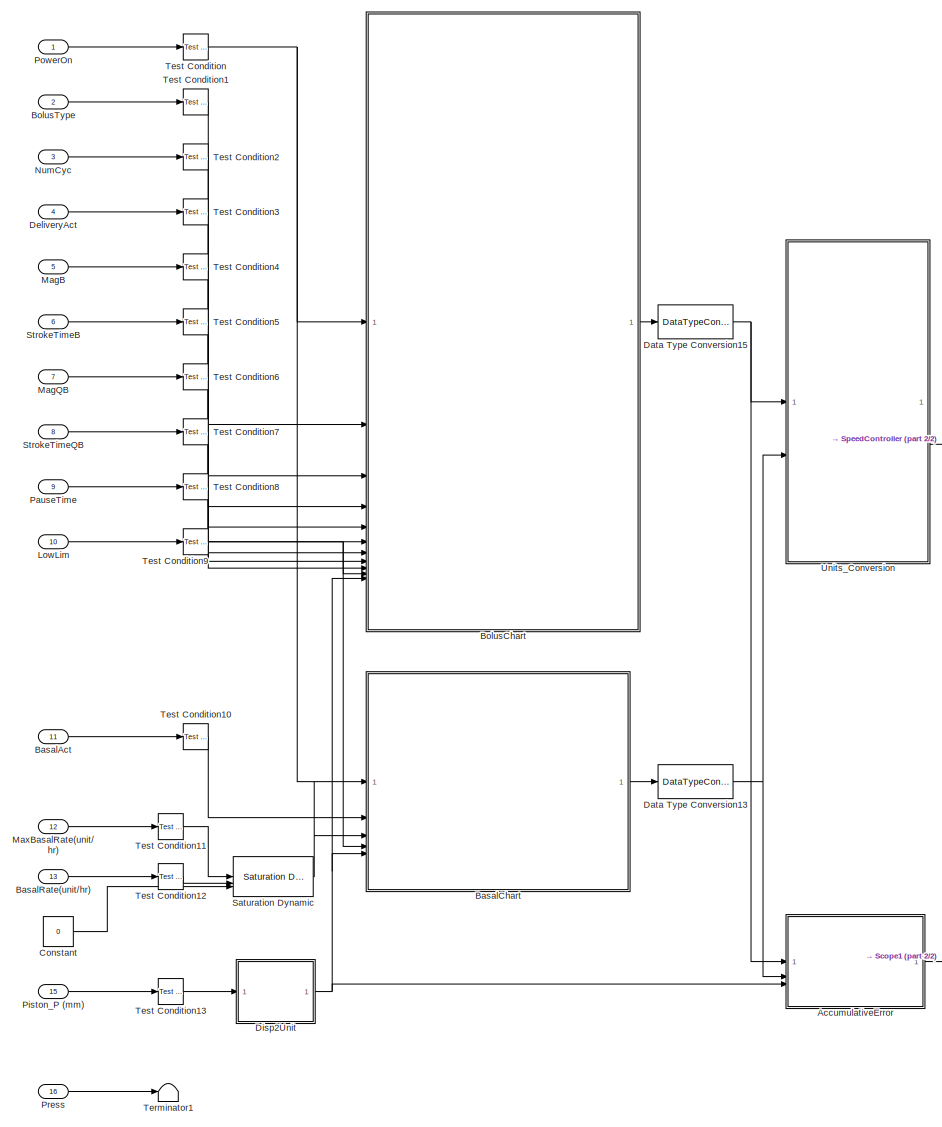
[diagram: Subsystem - part 1/2, center side, full height]
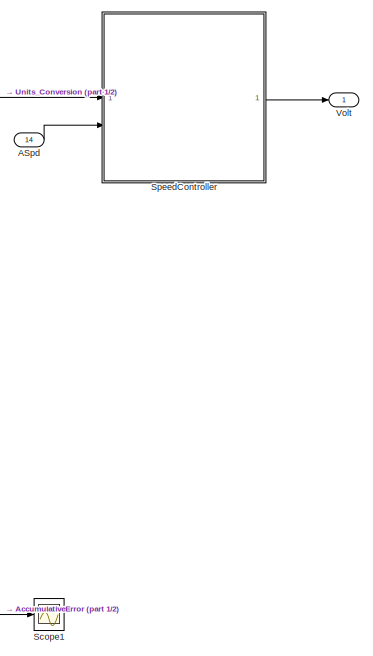
[diagram: Subsystem - part 2/2, middle right region]
BLOCK [SubSystem] Subsystem
BLOCK [Inport] Subsystem/ASpd
  OutDataTypeStr = double
  OutMax = 6000
  OutMin = -6000
  Port = 14
  PortDimensions = 1
  SampleTime = 0.001
  SamplingMode = Sample based
  SignalType = real
BLOCK [SubSystem] Subsystem/AccumulativeError
BLOCK [Sum] Subsystem/AccumulativeError/Add3
  IconShape = rectangular
  Inputs = +-
BLOCK [Sum] Subsystem/AccumulativeError/Add4
  IconShape = rectangular
BLOCK [Sum] Subsystem/AccumulativeError/Add5
  IconShape = rectangular
  Inputs = +-
BLOCK [Inport] Subsystem/AccumulativeError/BolusRate(units//s)
BLOCK [Constant] Subsystem/AccumulativeError/Constant3
  Value = 200
BLOCK [DiscreteIntegrator] Subsystem/AccumulativeError/Discrete-Time Integrator
  ICPrevOutput = DiscIntNeverNeededParam
  ICPrevScaledInput = DiscIntNeverNeededParam
  InitialConditionSetting = Auto
  SampleTime = -1
BLOCK [Product] Subsystem/AccumulativeError/Divide
  Inputs = */
BLOCK [Gain] Subsystem/AccumulativeError/Gain
  Gain = 1/3600
BLOCK [Outport] Subsystem/AccumulativeError/PctDiff
BLOCK [Saturate] Subsystem/AccumulativeError/Saturation1
  LowerLimit = 0.000001
  UpperLimit = 200
BLOCK [Saturate] Subsystem/AccumulativeError/Saturation2
  LowerLimit = -1
  UpperLimit = 1
BLOCK [Inport] Subsystem/AccumulativeError/UnitRemain
  Port = 3
BLOCK [Inport] Subsystem/AccumulativeError/basalRate(units//hr)
  Port = 2
BLOCK [Inport] Subsystem/BasalAct
  OutDataTypeStr = boolean
  OutMax = 1
  OutMin = 0
  Port = 11
  PortDimensions = 1
  SampleTime = 0.001
  SamplingMode = Sample based
  SignalType = real
BLOCK [SubSystem] Subsystem/BasalChart
  ErrorFcn = Stateflow.Translate.translate
  PermitHierarchicalResolution = ExplicitOnly
  SFBlockType = Chart
  TreatAsAtomicUnit = on
BLOCK [Demux] Subsystem/BasalChart/ Demux 
  Outputs = 1
BLOCK [S-Function] Subsystem/BasalChart/ SFunction 
  EnableBusSupport = on
  FunctionName = sf_sfun
  PortCounts = [5 2]
  SFcnIsStateOwnerBlock = off
  SFunctionDeploymentMode = off
  Tag = Stateflow S-Function 2
BLOCK [Terminator] Subsystem/BasalChart/ Terminator 
BLOCK [Inport] Subsystem/BasalChart/BasalActive
  Port = 2
BLOCK [Outport] Subsystem/BasalChart/BasalRate
BLOCK [Inport] Subsystem/BasalChart/BasalSet
  Port = 3
BLOCK [Inport] Subsystem/BasalChart/LowLim
  Port = 4
BLOCK [Inport] Subsystem/BasalChart/PowerOn
BLOCK [Inport] Subsystem/BasalChart/UnitRemain
  Port = 5
BLOCK [Inport] Subsystem/BasalRate(unit//hr)
  OutDataTypeStr = single
  OutMax = 2
  OutMin = 0
  Port = 13
  PortDimensions = 1
  SampleTime = 0.001
  SamplingMode = Sample based
  SignalType = real
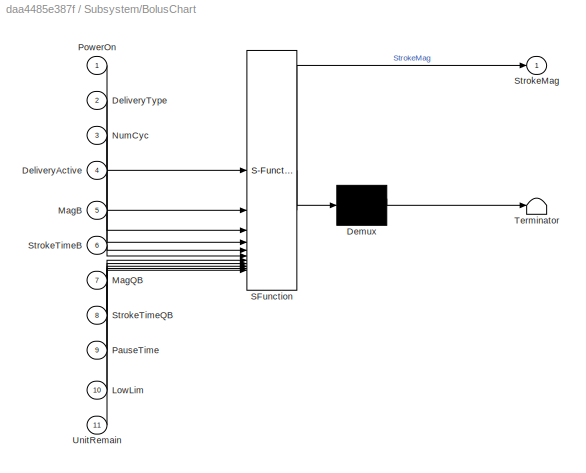
BLOCK [SubSystem] Subsystem/BolusChart
  ErrorFcn = Stateflow.Translate.translate
  PermitHierarchicalResolution = ExplicitOnly
  SFBlockType = Chart
  SystemSampleTime = 0.001
  TreatAsAtomicUnit = on
BLOCK [Demux] Subsystem/BolusChart/ Demux 
  Outputs = 1
BLOCK [S-Function] Subsystem/BolusChart/ SFunction 
  EnableBusSupport = on
  FunctionName = sf_sfun
  PortCounts = [11 2]
  SFcnIsStateOwnerBlock = off
  SFunctionDeploymentMode = off
  Tag = Stateflow S-Function 1
BLOCK [Terminator] Subsystem/BolusChart/ Terminator 
BLOCK [Inport] Subsystem/BolusChart/DeliveryActive
  Port = 4
BLOCK [Inport] Subsystem/BolusChart/DeliveryType
  Port = 2
BLOCK [Inport] Subsystem/BolusChart/LowLim
  Port = 10
BLOCK [Inport] Subsystem/BolusChart/MagB
  Port = 5
BLOCK [Inport] Subsystem/BolusChart/MagQB
  Port = 7
BLOCK [Inport] Subsystem/BolusChart/NumCyc
  Port = 3
BLOCK [Inport] Subsystem/BolusChart/PauseTime
  Port = 9
BLOCK [Inport] Subsystem/BolusChart/PowerOn
BLOCK [Outport] Subsystem/BolusChart/StrokeMag
BLOCK [Inport] Subsystem/BolusChart/StrokeTimeB
  Port = 6
BLOCK [Inport] Subsystem/BolusChart/StrokeTimeQB
  Port = 8
BLOCK [Inport] Subsystem/BolusChart/UnitRemain
  Port = 11
BLOCK [Inport] Subsystem/BolusType
  OutDataTypeStr = int8
  OutMax = 2
  OutMin = 0
  Port = 2
  PortDimensions = 1
  SampleTime = 0.001
  SamplingMode = Sample based
  SignalType = real
BLOCK [Constant] Subsystem/Constant
  OutDataTypeStr = single
  Value = 0
BLOCK [DataTypeConversion] Subsystem/Data Type Conversion13
  RndMeth = Floor
  SaturateOnIntegerOverflow = off
BLOCK [DataTypeConversion] Subsystem/Data Type Conversion15
  RndMeth = Floor
  SaturateOnIntegerOverflow = off
BLOCK [Inport] Subsystem/DeliveryAct
  OutDataTypeStr = boolean
  OutMax = 1
  OutMin = 0
  Port = 4
  PortDimensions = 1
  SampleTime = 0.001
  SamplingMode = Sample based
  SignalType = real
BLOCK [SubSystem] Subsystem/Disp2Unit
BLOCK [Sum] Subsystem/Disp2Unit/Add2
  IconShape = rectangular
  Inputs = +-
BLOCK [Sum] Subsystem/Disp2Unit/Add3
  IconShape = rectangular
BLOCK [Constant] Subsystem/Disp2Unit/Constant
  OutDataTypeStr = single
  Value = reserv_str.Resvor.Vol
BLOCK [Constant] Subsystem/Disp2Unit/Constant1
  OutDataTypeStr = single
  Value = reserv_str.Resvor.Len
BLOCK [Gain] Subsystem/Disp2Unit/Gain
  Gain = reserv_str.Resvor.Area
BLOCK [Gain] Subsystem/Disp2Unit/Gain1
  Gain = 1/15
BLOCK [Outport] Subsystem/Disp2Unit/NumU
  OutMax = 201
  OutMin = 0
BLOCK [Inport] Subsystem/Disp2Unit/Piston_P
  OutMax = 0
  OutMin = -30
BLOCK [Scope] Subsystem/Disp2Unit/Scope2
  Floating = off
  NumInputPorts = 1
  ScopeSpecificationString = Simulink.scopes.TimeScopeBlockCfg('CurrentConfiguration', extmgr.ConfigurationSet(extmgr.Configuration('Core','General UI',true),extmgr.Configuration('Core','Source UI',true),extmgr.Configuration('Sources','WiredSimulink',true,'DataLoggingVariableName','ScopeData2'),extmgr.Configuration('Visuals','Time Domain',true,'SerializedDisplays',{struct('MinYLimReal','213.72837','MaxYLimReal','160965.97084'...<+1460ch>
BLOCK [Inport] Subsystem/LowLim
  OutDataTypeStr = single
  OutMax = 100
  OutMin = 0
  Port = 10
  PortDimensions = 1
  SampleTime = 0.001
  SamplingMode = Sample based
  SignalType = real
BLOCK [Inport] Subsystem/MagB
  OutDataTypeStr = single
  OutMax = 3
  OutMin = 0
  Port = 5
  PortDimensions = 1
  SampleTime = 0.001
  SamplingMode = Sample based
  SignalType = real
BLOCK [Inport] Subsystem/MagQB
  OutDataTypeStr = single
  OutMax = 3
  OutMin = 0
  Port = 7
  PortDimensions = 4
  SampleTime = 0.001
  SamplingMode = Sample based
  SignalType = real
BLOCK [Inport] Subsystem/MaxBasalRate(unit//hr)
  OutDataTypeStr = single
  OutMax = 2
  OutMin = 0
  Port = 12
  PortDimensions = 1
  SampleTime = 0.001
  SamplingMode = Sample based
  SignalType = real
BLOCK [Inport] Subsystem/NumCyc
  OutDataTypeStr = int8
  OutMax = 100
  OutMin = 0
  Port = 3
  PortDimensions = 1
  SampleTime = 0.001
  SamplingMode = Sample based
  SignalType = real
BLOCK [Inport] Subsystem/PauseTime
  OutDataTypeStr = single
  OutMax = 100
  OutMin = 0
  Port = 9
  PortDimensions = 1
  SampleTime = 0.001
  SamplingMode = Sample based
  SignalType = real
BLOCK [Inport] Subsystem/Piston_P (mm)
  OutDataTypeStr = single
  OutMax = 0
  OutMin = -30
  Port = 15
  PortDimensions = 1
  SampleTime = 0.001
  SamplingMode = Sample based
  SignalType = real
BLOCK [Inport] Subsystem/PowerOn
  OutDataTypeStr = boolean
  OutMax = 1
  OutMin = 0
  PortDimensions = 1
  SampleTime = 0.001
  SamplingMode = Sample based
  SignalType = real
BLOCK [Inport] Subsystem/Press
  OutDataTypeStr = double
  OutMax = 1*10^7
  OutMin = 0
  Port = 16
  PortDimensions = 1
  SampleTime = 0.001
  SamplingMode = Sample based
  SignalType = real
BLOCK [Reference] Subsystem/Saturation Dynamic  REF=simulink/Discontinuities/Saturation
Dynamic
  SourceBlock = simulink/Discontinuities/Saturation\nDynamic
  SourceType = Saturation Dynamic
BLOCK [Scope] Subsystem/Scope1
  Floating = off
  NumInputPorts = 1
  ScopeSpecificationString = C++SS(StrPVP('SaveName','ScopeData1'),StrPVP('LimitDataPoints','on'),StrPVP('DataFormat','Array'),StrPVP('Decimation','1'),StrPVP('BlockParamSampleInput','off'))
BLOCK [SubSystem] Subsystem/SpeedController
  TreatAsAtomicUnit = on
BLOCK [Inport] Subsystem/SpeedController/ASpd
  OutMax = 6000
  OutMin = -6000
  Port = 2
BLOCK [Sum] Subsystem/SpeedController/Add1
  IconShape = rectangular
BLOCK [DiscreteTransferFcn] Subsystem/SpeedController/Discrete Transfer Fcn2
  Denominator = [1,-0.367879441171442]
  InputPortMap = u0
  Numerator = [0.367879441171442,0.264241117657115]
  SampleTime = 0.001
BLOCK [SubSystem] Subsystem/SpeedController/FeedbackController
BLOCK [Lookup_n-D] Subsystem/SpeedController/FeedbackController/1-D Lookup Table
  BreakpointsForDimension1 = [0 12.8 33.8 450]
  InputPortMap = u0
  InternalRulePriority = Speed
  NumberOfTableDimensions = 1
  RndMeth = Simplest
  Table = [1 1 1 1]*5e-4
BLOCK [Lookup_n-D] Subsystem/SpeedController/FeedbackController/1-D Lookup Table1
  BreakpointsForDimension1 = [0 12.8 33.8 450]
  InputPortMap = u0
  InternalRulePriority = Speed
  NumberOfTableDimensions = 1
  RndMeth = Simplest
  Table = [1 1 1 1]*5e-4
BLOCK [Inport] Subsystem/SpeedController/FeedbackController/ASpd
  OutMax = 6000
  OutMin = -6000
  Port = 2
BLOCK [Sum] Subsystem/SpeedController/FeedbackController/Add
  IconShape = rectangular
  Inputs = +-
BLOCK [Reference] Subsystem/SpeedController/FeedbackController/PID Controller  REF=slpidlib/PID Controller
  SourceBlock = slpidlib/PID Controller
  SourceType = PID 1dof
BLOCK [Inport] Subsystem/SpeedController/FeedbackController/RefASpd
  OutMax = 6000
  OutMin = -6000
BLOCK [Outport] Subsystem/SpeedController/FeedbackController/Volt
  OutMax = 10
  OutMin = -10
BLOCK [RateLimiter] Subsystem/SpeedController/Rate Limiter
  FallingSlewLimit = -10
  RisingSlewLimit = 10
  SampleTimeMode = inherited
BLOCK [Inport] Subsystem/SpeedController/RefASpd
  OutMax = 6000
  OutMin = -6000
BLOCK [Saturate] Subsystem/SpeedController/Reference_motor_speed_limit
  LowerLimit = -5200
  UpperLimit = 5200
BLOCK [Lookup_n-D] Subsystem/SpeedController/SteadyStateLookup
  BreakpointsForDimension1 = [0 0.136 0.170 0.205 1.08 2.58 8.02 12.8 33.8 828.2 1535.4 2171.5 2526 3000 3827.2 4246 4775.6 4991.1 5209.4]
  ExtrapMethod = Clip
  InputPortMap = u0
  InternalRulePriority = Speed
  NumberOfTableDimensions = 1
  RndMeth = Simplest
  Table = [0 0.25 0.3 0.35 0.355 0.36 0.38 0.4 0.5 1 1.5 2 2.3 2.72 3.5 3.9 4.4 4.6 4.8]
BLOCK [Outport] Subsystem/SpeedController/Volt
  OutMax = 10
  OutMin = -10
BLOCK [Inport] Subsystem/StrokeTimeB
  OutDataTypeStr = single
  OutMax = 5
  OutMin = 0.2
  Port = 6
  PortDimensions = 1
  SampleTime = 0.001
  SamplingMode = Sample based
  SignalType = real
BLOCK [Inport] Subsystem/StrokeTimeQB
  OutDataTypeStr = single
  OutMax = 5
  OutMin = 0.2
  Port = 8
  PortDimensions = 4
  SampleTime = 0.001
  SamplingMode = Sample based
  SignalType = real
BLOCK [Terminator] Subsystem/Terminator1
BLOCK [Reference] Subsystem/Test Condition  REF=sldvlib/Objectives and Constraints/Test Condition
  AttributesFormatString = %<intervals>
  Commented = through
  NameLocation = top
  SourceBlock = sldvlib/Objectives and Constraints/Test Condition
  SourceType = Design Verifier Test Condition
BLOCK [Reference] Subsystem/Test Condition1  REF=sldvlib/Objectives and Constraints/Test Condition
  AttributesFormatString = %<intervals>
  Commented = through
  NameLocation = top
  SourceBlock = sldvlib/Objectives and Constraints/Test Condition
  SourceType = Design Verifier Test Condition
BLOCK [Reference] Subsystem/Test Condition10  REF=sldvlib/Objectives and Constraints/Test Condition
  AttributesFormatString = %<intervals>
  Commented = through
  NameLocation = top
  SourceBlock = sldvlib/Objectives and Constraints/Test Condition
  SourceType = Design Verifier Test Condition
BLOCK [Reference] Subsystem/Test Condition11  REF=sldvlib/Objectives and Constraints/Test Condition
  AttributesFormatString = %<intervals>
  Commented = through
  NameLocation = top
  SourceBlock = sldvlib/Objectives and Constraints/Test Condition
  SourceType = Design Verifier Test Condition
BLOCK [Reference] Subsystem/Test Condition12  REF=sldvlib/Objectives and Constraints/Test Condition
  AttributesFormatString = %<intervals>
  Commented = through
  NameLocation = top
  SourceBlock = sldvlib/Objectives and Constraints/Test Condition
  SourceType = Design Verifier Test Condition
BLOCK [Reference] Subsystem/Test Condition13  REF=sldvlib/Objectives and Constraints/Test Condition
  AttributesFormatString = %<intervals>
  Commented = through
  NameLocation = top
  SourceBlock = sldvlib/Objectives and Constraints/Test Condition
  SourceType = Design Verifier Test Condition
BLOCK [Reference] Subsystem/Test Condition2  REF=sldvlib/Objectives and Constraints/Test Condition
  AttributesFormatString = %<intervals>
  Commented = through
  NameLocation = top
  SourceBlock = sldvlib/Objectives and Constraints/Test Condition
  SourceType = Design Verifier Test Condition
BLOCK [Reference] Subsystem/Test Condition3  REF=sldvlib/Objectives and Constraints/Test Condition
  AttributesFormatString = %<intervals>
  Commented = through
  NameLocation = top
  SourceBlock = sldvlib/Objectives and Constraints/Test Condition
  SourceType = Design Verifier Test Condition
BLOCK [Reference] Subsystem/Test Condition4  REF=sldvlib/Objectives and Constraints/Test Condition
  AttributesFormatString = %<intervals>
  Commented = through
  NameLocation = top
  SourceBlock = sldvlib/Objectives and Constraints/Test Condition
  SourceType = Design Verifier Test Condition
BLOCK [Reference] Subsystem/Test Condition5  REF=sldvlib/Objectives and Constraints/Test Condition
  AttributesFormatString = %<intervals>
  Commented = through
  NameLocation = top
  SourceBlock = sldvlib/Objectives and Constraints/Test Condition
  SourceType = Design Verifier Test Condition
BLOCK [Reference] Subsystem/Test Condition6  REF=sldvlib/Objectives and Constraints/Test Condition
  AttributesFormatString = %<intervals>
  Commented = through
  NameLocation = top
  SourceBlock = sldvlib/Objectives and Constraints/Test Condition
  SourceType = Design Verifier Test Condition
BLOCK [Reference] Subsystem/Test Condition7  REF=sldvlib/Objectives and Constraints/Test Condition
  AttributesFormatString = %<intervals>
  Commented = through
  NameLocation = top
  SourceBlock = sldvlib/Objectives and Constraints/Test Condition
  SourceType = Design Verifier Test Condition
BLOCK [Reference] Subsystem/Test Condition8  REF=sldvlib/Objectives and Constraints/Test Condition
  AttributesFormatString = %<intervals>
  Commented = through
  NameLocation = top
  SourceBlock = sldvlib/Objectives and Constraints/Test Condition
  SourceType = Design Verifier Test Condition
BLOCK [Reference] Subsystem/Test Condition9  REF=sldvlib/Objectives and Constraints/Test Condition
  AttributesFormatString = %<intervals>
  Commented = through
  NameLocation = top
  SourceBlock = sldvlib/Objectives and Constraints/Test Condition
  SourceType = Design Verifier Test Condition
BLOCK [SubSystem] Subsystem/Units_Conversion
  TreatAsAtomicUnit = on
BLOCK [Sum] Subsystem/Units_Conversion/Add2
  IconShape = rectangular
BLOCK [SubSystem] Subsystem/Units_Conversion/BasalMap2Spd
BLOCK [Gain] Subsystem/Units_Conversion/BasalMap2Spd/1//CrossArea_Output(mm//min)
  Gain = 1/reserv_str.Resvor.Area
BLOCK [Gain] Subsystem/Units_Conversion/BasalMap2Spd/Gain
  Gain = 1/60
BLOCK [Gain] Subsystem/Units_Conversion/BasalMap2Spd/Gain3
  Gain = 15
BLOCK [Gain] Subsystem/Units_Conversion/BasalMap2Spd/Gear_Input(rev//min)
  Gain = reserv_str.DriveSys.GearRatio
BLOCK [Gain] Subsystem/Units_Conversion/BasalMap2Spd/Rev//inch_Output(rev//min)
  Gain = 1/reserv_str.DriveSys.ScrewLead
BLOCK [Gain] Subsystem/Units_Conversion/BasalMap2Spd/mm2inch_Output(inch//min)
  Gain = 1/25.4
BLOCK [Outport] Subsystem/Units_Conversion/BasalMap2Spd/rev//min
BLOCK [Inport] Subsystem/Units_Conversion/BasalMap2Spd/unit//hr
BLOCK [Inport] Subsystem/Units_Conversion/BasalRate
  OutMax = 2
  OutMin = 0
  Port = 2
BLOCK [SubSystem] Subsystem/Units_Conversion/BolusMap2Spd
BLOCK [Gain] Subsystem/Units_Conversion/BolusMap2Spd/1//CrossArea_Output(mm//min)
  Gain = 1/reserv_str.Resvor.Area
BLOCK [Gain] Subsystem/Units_Conversion/BolusMap2Spd/Gain
  Gain = 60
BLOCK [Gain] Subsystem/Units_Conversion/BolusMap2Spd/Gain3
  Gain = 15
BLOCK [Gain] Subsystem/Units_Conversion/BolusMap2Spd/Gear_Input(rev//min)
  Gain = reserv_str.DriveSys.GearRatio
BLOCK [Gain] Subsystem/Units_Conversion/BolusMap2Spd/Rev//inch_Output(rev//min)
  Gain = 1/reserv_str.DriveSys.ScrewLead
BLOCK [Gain] Subsystem/Units_Conversion/BolusMap2Spd/mm2inch_Output(inch//min)
  Gain = 1/25.4
BLOCK [Outport] Subsystem/Units_Conversion/BolusMap2Spd/rev//min
BLOCK [Inport] Subsystem/Units_Conversion/BolusMap2Spd/unit//s
BLOCK [Outport] Subsystem/Units_Conversion/RefASpd
  OutMax = 6000
  OutMin = -6000
BLOCK [Inport] Subsystem/Units_Conversion/StokeMag
  OutMax = 15
  OutMin = 0
BLOCK [Outport] Subsystem/Volt
  OutDataTypeStr = double
  OutMax = 10
  OutMin = -10
  PortDimensions = 1
  SampleTime = [0.001,0]
  SamplingMode = Sample based
  SignalType = real
LINE Constant12:1 -> Data Type Conversion4:1
LINE Constant13:1 -> Data Type Conversion5:1
LINE Constant14:1 -> Data Type Conversion6:1
LINE Constant15:1 -> Data Type Conversion7:1
LINE Constant16:1 -> Data Type Conversion8:1
LINE Constant1:1 -> Data Type Conversion:1
LINE Constant2:1 -> Data Type Conversion1:1
LINE Constant3:1 -> Data Type Conversion2:1
LINE Constant4:1 -> Data Type Conversion11:1
LINE Constant5:1 -> Data Type Conversion9:1
LINE Constant6:1 -> Data Type Conversion14:1
LINE Data Type Conversion10:1 -> Subsystem:11
LINE Data Type Conversion11:1 -> Subsystem:13
LINE Data Type Conversion12:1 -> Subsystem:15
LINE Data Type Conversion14:1 -> Subsystem:10
LINE Data Type Conversion1:1 -> Subsystem:2
LINE Data Type Conversion2:1 -> Subsystem:5
LINE Data Type Conversion3:1 -> Subsystem:4
LINE Data Type Conversion4:1 -> Subsystem:6
LINE Data Type Conversion5:1 -> Subsystem:3
LINE Data Type Conversion6:1 -> Subsystem:9
LINE Data Type Conversion7:1 -> Subsystem:7
LINE Data Type Conversion8:1 -> Subsystem:8
LINE Data Type Conversion9:1 -> Subsystem:12
LINE Data Type Conversion:1 -> Subsystem:1
LINE Hit Crossing:1 -> Data Type Conversion3:1
LINE Plant/DC Motor Drive/AngSensor/PS-Simulink Converter1:1 -> Plant/DC Motor Drive/AngSensor/Terminator1:1
LINE Plant/DC Motor Drive/AngSensor/PS-Simulink Converter9:1 -> Plant/DC Motor Drive/AngSensor/ASpd:1
LINE Plant/DC Motor Drive/AngSensor:1 -> Plant/DC Motor Drive/ASpd:1
LINE Plant/DC Motor Drive/CurrSensor/PS-Simulink Converter11:1 -> Plant/DC Motor Drive/CurrSensor/Terminator:1
LINE Plant/DC Motor Drive/Transfer Fcn:1 -> Plant/DC Motor Drive/Simulink-PS Converter:1
LINE Plant/DC Motor Drive/TrqSensor/PS-Simulink Converter10:1 -> Plant/DC Motor Drive/TrqSensor/Terminator:1
LINE Plant/DC Motor Drive/Volt:1 -> Plant/DC Motor Drive/Transfer Fcn:1
LINE Plant/DC Motor Drive:1 -> Plant/Rate Transition:1
LINE Plant/DeliveryLine/Add:1 -> Plant/DeliveryLine/Switch:1
LINE Plant/DeliveryLine/Clock:1 -> Plant/DeliveryLine/Switch:2
LINE Plant/DeliveryLine/Constant1:1 -> Plant/DeliveryLine/Add:2
NET Plant/DeliveryLine/Constant:1 -> Plant/DeliveryLine/Add:1, Plant/DeliveryLine/Switch:3
LINE Plant/DeliveryLine/FlowSensor#0/PS-Simulink Converter:1 -> Plant/DeliveryLine/FlowSensor#0/Saturation:1
LINE Plant/DeliveryLine/FlowSensor#0/Saturation:1 -> Plant/DeliveryLine/FlowSensor#0/Scope:1
LINE Plant/DeliveryLine/FlowSensor#1/PS-Simulink Converter:1 -> Plant/DeliveryLine/FlowSensor#1/Saturation:1
LINE Plant/DeliveryLine/FlowSensor#1/Saturation:1 -> Plant/DeliveryLine/FlowSensor#1/Scope:1
LINE Plant/DeliveryLine/Gain:1 -> Plant/DeliveryLine/Transfer Fcn (with initial outputs):1
LINE Plant/DeliveryLine/P Sensor/PS-Simulink Converter:1 -> Plant/DeliveryLine/P Sensor/P:1
LINE Plant/DeliveryLine/P Sensor:1 -> Plant/DeliveryLine/Press:1
LINE Plant/DeliveryLine/Switch:1 -> Plant/DeliveryLine/Gain:1
NET Plant/DeliveryLine/Transfer Fcn (with initial outputs):1 -> Plant/DeliveryLine/Scope:1, Plant/DeliveryLine/Simulink-PS Converter1:1
LINE Plant/DeliveryLine:1 -> Plant/Rate Transition2:1
NET Plant/Drive System/AngSensor/PS-Simulink Converter1:1 -> Plant/Drive System/AngSensor/Scope1:1, Plant/Drive System/AngSensor/Terminator1:1
NET Plant/Drive System/AngSensor/PS-Simulink Converter9:1 -> Plant/Drive System/AngSensor/Scope:1, Plant/Drive System/AngSensor/Terminator:1
LINE Plant/Rate Transition1:1 -> Plant/DC Motor Drive:1
NET Plant/Rate Transition2:1 -> Plant/Press:1, Plant/Rate Transition5:1
LINE Plant/Rate Transition3:1 -> Plant/Piston_P:1
LINE Plant/Rate Transition4:1 -> Plant/Scope2:1
LINE Plant/Rate Transition5:1 -> Plant/Scope1:1
LINE Plant/Rate Transition6:1 -> Plant/Scope3:1
NET Plant/Rate Transition:1 -> Plant/ASpd:1, Plant/Rate Transition4:1
LINE Plant/Reservoir1/P Sensor/PS-Simulink Converter:1 -> Plant/Reservoir1/P Sensor/Scope1:1
NET Plant/Reservoir1/PS-Simulink Converter2:1 -> Plant/Reservoir1/Piston_P:1, Plant/Reservoir1/Scope2:1
NET Plant/Reservoir1/TransSensor/PS-Simulink Converter3:1 -> Plant/Reservoir1/TransSensor/Scope:1, Plant/Reservoir1/TransSensor/Terminator:1
NET Plant/Reservoir1/TransSensor/PS-Simulink Converter4:1 -> Plant/Reservoir1/TransSensor/Scope1:1, Plant/Reservoir1/TransSensor/Terminator1:1
LINE Plant/Reservoir2/P Sensor/PS-Simulink Converter:1 -> Plant/Reservoir2/P Sensor/Scope1:1
NET Plant/Reservoir2/PS-Simulink Converter2:1 -> Plant/Reservoir2/Piston_P:1, Plant/Reservoir2/Scope2:1
NET Plant/Reservoir2/TransSensor/PS-Simulink Converter3:1 -> Plant/Reservoir2/TransSensor/Scope:1, Plant/Reservoir2/TransSensor/Terminator:1
NET Plant/Reservoir2/TransSensor/PS-Simulink Converter4:1 -> Plant/Reservoir2/TransSensor/Scope1:1, Plant/Reservoir2/TransSensor/Terminator1:1
LINE Plant/Reservoir3/P Sensor/PS-Simulink Converter:1 -> Plant/Reservoir3/P Sensor/Scope1:1
NET Plant/Reservoir3/PS-Simulink Converter2:1 -> Plant/Reservoir3/Piston_P:1, Plant/Reservoir3/Scope2:1
NET Plant/Reservoir3/TransSensor/PS-Simulink Converter3:1 -> Plant/Reservoir3/TransSensor/Scope:1, Plant/Reservoir3/TransSensor/Terminator:1
NET Plant/Reservoir3/TransSensor/PS-Simulink Converter4:1 -> Plant/Reservoir3/TransSensor/Scope1:1, Plant/Reservoir3/TransSensor/Terminator1:1
LINE Plant/Reservoir3:1 -> Plant/Rate Transition3:1
NET Plant/Slide1/Force Sensor/PS-Simulink Converter15:1 -> Plant/Slide1/Force Sensor/Rate Transition4:1, Plant/Slide1/Force Sensor/Terminator:1
LINE Plant/Slide1/Force Sensor/Rate Transition4:1 -> Plant/Slide1/Force Sensor/Scope2:1
NET Plant/Slide2/Force Sensor/PS-Simulink Converter15:1 -> Plant/Slide2/Force Sensor/Rate Transition4:1, Plant/Slide2/Force Sensor/Terminator:1
LINE Plant/Slide2/Force Sensor/Rate Transition4:1 -> Plant/Slide2/Force Sensor/Scope2:1
NET Plant/Slide2/SpringRateModel/PS-Simulink Converter17:1 -> Plant/Slide2/SpringRateModel/Scope1:1, Plant/Slide2/SpringRateModel/Terminator:1
LINE Plant/Slide2/SpringRateModel/PS-Simulink Converter1:1 -> Plant/Slide2/SpringRateModel/Scope:1
LINE Plant/Slide2/TransSensor/PS-Simulink Converter3:1 -> Plant/Slide2/TransSensor/Terminator:1
LINE Plant/Slide2/TransSensor/PS-Simulink Converter4:1 -> Plant/Slide2/TransSensor/Terminator1:1
NET Plant/Slide3/Force Sensor/PS-Simulink Converter15:1 -> Plant/Slide3/Force Sensor/Rate Transition4:1, Plant/Slide3/Force Sensor/Terminator:1
LINE Plant/Slide3/Force Sensor/Rate Transition4:1 -> Plant/Slide3/Force Sensor/Scope2:1
NET Plant/Slide3/SpringRateModel/PS-Simulink Converter17:1 -> Plant/Slide3/SpringRateModel/Scope1:1, Plant/Slide3/SpringRateModel/Terminator:1
LINE Plant/Slide3/SpringRateModel/PS-Simulink Converter1:1 -> Plant/Slide3/SpringRateModel/Scope:1
LINE Plant/Slide3/TransSensor/PS-Simulink Converter3:1 -> Plant/Slide3/TransSensor/Terminator:1
LINE Plant/Slide3/TransSensor/PS-Simulink Converter4:1 -> Plant/Slide3/TransSensor/Terminator1:1
NET Plant/Volt:1 -> Plant/Rate Transition1:1, Plant/Rate Transition6:1
LINE Plant:1 -> Subsystem:14
LINE Plant:2 -> Data Type Conversion12:1
LINE Plant:3 -> Subsystem:16
LINE Step1:1 -> Data Type Conversion10:1
LINE Step2:1 -> Hit Crossing:1
LINE Subsystem/ASpd:1 -> Subsystem/SpeedController:2
LINE Subsystem/AccumulativeError/Add3:1 -> Subsystem/AccumulativeError/Add5:1
LINE Subsystem/AccumulativeError/Add4:1 -> Subsystem/AccumulativeError/Discrete-Time Integrator:1
LINE Subsystem/AccumulativeError/Add5:1 -> Subsystem/AccumulativeError/Divide:1
LINE Subsystem/AccumulativeError/BolusRate(units//s):1 -> Subsystem/AccumulativeError/Add4:1
LINE Subsystem/AccumulativeError/Constant3:1 -> Subsystem/AccumulativeError/Add3:1
NET Subsystem/AccumulativeError/Discrete-Time Integrator:1 -> Subsystem/AccumulativeError/Add5:2, Subsystem/AccumulativeError/Saturation1:1
LINE Subsystem/AccumulativeError/Divide:1 -> Subsystem/AccumulativeError/Saturation2:1
LINE Subsystem/AccumulativeError/Gain:1 -> Subsystem/AccumulativeError/Add4:2
LINE Subsystem/AccumulativeError/Saturation1:1 -> Subsystem/AccumulativeError/Divide:2
LINE Subsystem/AccumulativeError/Saturation2:1 -> Subsystem/AccumulativeError/PctDiff:1
LINE Subsystem/AccumulativeError/UnitRemain:1 -> Subsystem/AccumulativeError/Add3:2
LINE Subsystem/AccumulativeError/basalRate(units//hr):1 -> Subsystem/AccumulativeError/Gain:1
LINE Subsystem/AccumulativeError:1 -> Subsystem/Scope1:1
LINE Subsystem/BasalAct:1 -> Subsystem/Test Condition10:1
LINE Subsystem/BasalChart:1 -> Subsystem/Data Type Conversion13:1
LINE Subsystem/BasalRate(unit//hr):1 -> Subsystem/Test Condition12:1
LINE Subsystem/BolusChart:1 -> Subsystem/Data Type Conversion15:1
LINE Subsystem/BolusType:1 -> Subsystem/Test Condition1:1
LINE Subsystem/Constant:1 -> Subsystem/Saturation Dynamic:3
NET Subsystem/Data Type Conversion13:1 -> Subsystem/AccumulativeError:2, Subsystem/Units_Conversion:2
NET Subsystem/Data Type Conversion15:1 -> Subsystem/AccumulativeError:1, Subsystem/Units_Conversion:1
LINE Subsystem/DeliveryAct:1 -> Subsystem/Test Condition3:1
LINE Subsystem/Disp2Unit/Add2:1 -> Subsystem/Disp2Unit/Gain1:1
NET Subsystem/Disp2Unit/Add3:1 -> Subsystem/Disp2Unit/Gain:1, Subsystem/Disp2Unit/Scope2:1
LINE Subsystem/Disp2Unit/Constant1:1 -> Subsystem/Disp2Unit/Add3:2
LINE Subsystem/Disp2Unit/Constant:1 -> Subsystem/Disp2Unit/Add2:1
LINE Subsystem/Disp2Unit/Gain1:1 -> Subsystem/Disp2Unit/NumU:1
LINE Subsystem/Disp2Unit/Gain:1 -> Subsystem/Disp2Unit/Add2:2
LINE Subsystem/Disp2Unit/Piston_P:1 -> Subsystem/Disp2Unit/Add3:1
NET Subsystem/Disp2Unit:1 -> Subsystem/AccumulativeError:3, Subsystem/BasalChart:5, Subsystem/BolusChart:11
LINE Subsystem/LowLim:1 -> Subsystem/Test Condition9:1
LINE Subsystem/MagB:1 -> Subsystem/Test Condition4:1
LINE Subsystem/MagQB:1 -> Subsystem/Test Condition6:1
LINE Subsystem/MaxBasalRate(unit//hr):1 -> Subsystem/Test Condition11:1
LINE Subsystem/NumCyc:1 -> Subsystem/Test Condition2:1
LINE Subsystem/PauseTime:1 -> Subsystem/Test Condition8:1
LINE Subsystem/Piston_P (mm):1 -> Subsystem/Test Condition13:1
LINE Subsystem/PowerOn:1 -> Subsystem/Test Condition:1
LINE Subsystem/Press:1 -> Subsystem/Terminator1:1
LINE Subsystem/Saturation Dynamic:1 -> Subsystem/BasalChart:3
LINE Subsystem/SpeedController/ASpd:1 -> Subsystem/SpeedController/FeedbackController:2
LINE Subsystem/SpeedController/Add1:1 -> Subsystem/SpeedController/Rate Limiter:1
NET Subsystem/SpeedController/Discrete Transfer Fcn2:1 -> Subsystem/SpeedController/FeedbackController:1, Subsystem/SpeedController/SteadyStateLookup:1
LINE Subsystem/SpeedController/FeedbackController/1-D Lookup Table1:1 -> Subsystem/SpeedController/FeedbackController/PID Controller:3
LINE Subsystem/SpeedController/FeedbackController/1-D Lookup Table:1 -> Subsystem/SpeedController/FeedbackController/PID Controller:2
LINE Subsystem/SpeedController/FeedbackController/ASpd:1 -> Subsystem/SpeedController/FeedbackController/Add:2
NET Subsystem/SpeedController/FeedbackController/Add:1 -> Subsystem/SpeedController/FeedbackController/1-D Lookup Table1:1, Subsystem/SpeedController/FeedbackController/1-D Lookup Table:1, Subsystem/SpeedController/FeedbackController/PID Controller:1
LINE Subsystem/SpeedController/FeedbackController/PID Controller:1 -> Subsystem/SpeedController/FeedbackController/Volt:1
LINE Subsystem/SpeedController/FeedbackController/RefASpd:1 -> Subsystem/SpeedController/FeedbackController/Add:1
LINE Subsystem/SpeedController/FeedbackController:1 -> Subsystem/SpeedController/Add1:2
LINE Subsystem/SpeedController/Rate Limiter:1 -> Subsystem/SpeedController/Volt:1
LINE Subsystem/SpeedController/RefASpd:1 -> Subsystem/SpeedController/Reference_motor_speed_limit:1
LINE Subsystem/SpeedController/Reference_motor_speed_limit:1 -> Subsystem/SpeedController/Discrete Transfer Fcn2:1
LINE Subsystem/SpeedController/SteadyStateLookup:1 -> Subsystem/SpeedController/Add1:1
LINE Subsystem/SpeedController:1 -> Subsystem/Volt:1
LINE Subsystem/StrokeTimeB:1 -> Subsystem/Test Condition5:1
LINE Subsystem/StrokeTimeQB:1 -> Subsystem/Test Condition7:1
LINE Subsystem/Test Condition10:1 -> Subsystem/BasalChart:2
LINE Subsystem/Test Condition11:1 -> Subsystem/Saturation Dynamic:1
LINE Subsystem/Test Condition12:1 -> Subsystem/Saturation Dynamic:2
LINE Subsystem/Test Condition13:1 -> Subsystem/Disp2Unit:1
LINE Subsystem/Test Condition1:1 -> Subsystem/BolusChart:2
LINE Subsystem/Test Condition2:1 -> Subsystem/BolusChart:3
LINE Subsystem/Test Condition3:1 -> Subsystem/BolusChart:4
LINE Subsystem/Test Condition4:1 -> Subsystem/BolusChart:5
LINE Subsystem/Test Condition5:1 -> Subsystem/BolusChart:6
LINE Subsystem/Test Condition6:1 -> Subsystem/BolusChart:7
LINE Subsystem/Test Condition7:1 -> Subsystem/BolusChart:8
LINE Subsystem/Test Condition8:1 -> Subsystem/BolusChart:9
NET Subsystem/Test Condition9:1 -> Subsystem/BasalChart:4, Subsystem/BolusChart:10
NET Subsystem/Test Condition:1 -> Subsystem/BasalChart:1, Subsystem/BolusChart:1
LINE Subsystem/Units_Conversion/Add2:1 -> Subsystem/Units_Conversion/RefASpd:1
LINE Subsystem/Units_Conversion/BasalMap2Spd/1//CrossArea_Output(mm//min):1 -> Subsystem/Units_Conversion/BasalMap2Spd/mm2inch_Output(inch//min):1
LINE Subsystem/Units_Conversion/BasalMap2Spd/Gain3:1 -> Subsystem/Units_Conversion/BasalMap2Spd/1//CrossArea_Output(mm//min):1
LINE Subsystem/Units_Conversion/BasalMap2Spd/Gain:1 -> Subsystem/Units_Conversion/BasalMap2Spd/Gain3:1
LINE Subsystem/Units_Conversion/BasalMap2Spd/Gear_Input(rev//min):1 -> Subsystem/Units_Conversion/BasalMap2Spd/rev//min:1
LINE Subsystem/Units_Conversion/BasalMap2Spd/Rev//inch_Output(rev//min):1 -> Subsystem/Units_Conversion/BasalMap2Spd/Gear_Input(rev//min):1
LINE Subsystem/Units_Conversion/BasalMap2Spd/mm2inch_Output(inch//min):1 -> Subsystem/Units_Conversion/BasalMap2Spd/Rev//inch_Output(rev//min):1
LINE Subsystem/Units_Conversion/BasalMap2Spd/unit//hr:1 -> Subsystem/Units_Conversion/BasalMap2Spd/Gain:1
LINE Subsystem/Units_Conversion/BasalMap2Spd:1 -> Subsystem/Units_Conversion/Add2:2
LINE Subsystem/Units_Conversion/BasalRate:1 -> Subsystem/Units_Conversion/BasalMap2Spd:1
LINE Subsystem/Units_Conversion/BolusMap2Spd/1//CrossArea_Output(mm//min):1 -> Subsystem/Units_Conversion/BolusMap2Spd/mm2inch_Output(inch//min):1
LINE Subsystem/Units_Conversion/BolusMap2Spd/Gain3:1 -> Subsystem/Units_Conversion/BolusMap2Spd/1//CrossArea_Output(mm//min):1
LINE Subsystem/Units_Conversion/BolusMap2Spd/Gain:1 -> Subsystem/Units_Conversion/BolusMap2Spd/Gain3:1
LINE Subsystem/Units_Conversion/BolusMap2Spd/Gear_Input(rev//min):1 -> Subsystem/Units_Conversion/BolusMap2Spd/rev//min:1
LINE Subsystem/Units_Conversion/BolusMap2Spd/Rev//inch_Output(rev//min):1 -> Subsystem/Units_Conversion/BolusMap2Spd/Gear_Input(rev//min):1
LINE Subsystem/Units_Conversion/BolusMap2Spd/mm2inch_Output(inch//min):1 -> Subsystem/Units_Conversion/BolusMap2Spd/Rev//inch_Output(rev//min):1
LINE Subsystem/Units_Conversion/BolusMap2Spd/unit//s:1 -> Subsystem/Units_Conversion/BolusMap2Spd/Gain:1
LINE Subsystem/Units_Conversion/BolusMap2Spd:1 -> Subsystem/Units_Conversion/Add2:1
LINE Subsystem/Units_Conversion/StokeMag:1 -> Subsystem/Units_Conversion/BolusMap2Spd:1
LINE Subsystem/Units_Conversion:1 -> Subsystem/SpeedController:1
LINE Subsystem:1 -> Plant:1
PLINE Plant/DC Motor Drive/AngSensor/Ideal Rotational Motion Sensor:LConn1 -- Plant/DC Motor Drive/AngSensor/R:RConn1
PLINE Plant/DC Motor Drive/AngSensor/Ideal Rotational Motion Sensor:RConn1 -- Plant/DC Motor Drive/AngSensor/Mechanical Rotational Reference1:LConn1
PLINE Plant/DC Motor Drive/AngSensor/Ideal Rotational Motion Sensor:RConn2 -- Plant/DC Motor Drive/AngSensor/PS-Simulink Converter9:LConn1
PLINE Plant/DC Motor Drive/AngSensor/Ideal Rotational Motion Sensor:RConn3 -- Plant/DC Motor Drive/AngSensor/PS-Simulink Converter1:LConn1
PNET net1: Plant/DC Motor Drive/AngSensor:LConn1 -- Plant/DC Motor Drive/Torsional Spring-Damper:RConn1 -- Plant/DC Motor Drive/TrqSensor:LConn1
PLINE Plant/DC Motor Drive/Conn:RConn1 -- Plant/DC Motor Drive/TrqSensor:RConn1
PLINE Plant/DC Motor Drive/Controlled Voltage Source:LConn1 -- Plant/DC Motor Drive/CurrSensor:LConn1
PLINE Plant/DC Motor Drive/Controlled Voltage Source:RConn1 -- Plant/DC Motor Drive/Simulink-PS Converter:RConn1
PNET net2: Plant/DC Motor Drive/Controlled Voltage Source:RConn2 -- Plant/DC Motor Drive/DC Motor:RConn1 -- Plant/DC Motor Drive/Electrical Reference:LConn1 -- Plant/DC Motor Drive/Solver Configuration:RConn1
PLINE Plant/DC Motor Drive/CurrSensor/+:RConn1 -- Plant/DC Motor Drive/CurrSensor/Current Sensor1:LConn1
PLINE Plant/DC Motor Drive/CurrSensor/-:RConn1 -- Plant/DC Motor Drive/CurrSensor/Current Sensor1:RConn2
PLINE Plant/DC Motor Drive/CurrSensor/Current Sensor1:RConn1 -- Plant/DC Motor Drive/CurrSensor/PS-Simulink Converter11:LConn1
PLINE Plant/DC Motor Drive/CurrSensor:RConn1 -- Plant/DC Motor Drive/DC Motor:LConn1
PLINE Plant/DC Motor Drive/DC Motor:LConn2 -- Plant/DC Motor Drive/Torsional Spring-Damper:LConn1
PLINE Plant/DC Motor Drive/DC Motor:RConn2 -- Plant/DC Motor Drive/Mechanical Rotational Reference:LConn1
PLINE Plant/DC Motor Drive/TrqSensor/C:RConn1 -- Plant/DC Motor Drive/TrqSensor/Ideal Torque Sensor1:RConn1
PLINE Plant/DC Motor Drive/TrqSensor/Ideal Torque Sensor1:LConn1 -- Plant/DC Motor Drive/TrqSensor/R:RConn1
PLINE Plant/DC Motor Drive/TrqSensor/Ideal Torque Sensor1:RConn2 -- Plant/DC Motor Drive/TrqSensor/PS-Simulink Converter10:LConn1
PLINE Plant/DC Motor Drive:RConn1 -- Plant/Drive System:LConn1
PLINE Plant/DeliveryLine/A:RConn1 -- Plant/DeliveryLine/FlowSensor#0:LConn1
PNET net3: Plant/DeliveryLine/Constant Volume Hydraulic Chamber1:LConn1 -- Plant/DeliveryLine/needle to tubing:RConn1 -- Plant/DeliveryLine/tubing:LConn1
PNET net4: Plant/DeliveryLine/Constant Volume Hydraulic Chamber:LConn1 -- Plant/DeliveryLine/needle to tubing:LConn1 -- Plant/DeliveryLine/needle:RConn1
PNET net5: Plant/DeliveryLine/Custom Hydraulic Fluid1:RConn1 -- Plant/DeliveryLine/FlowSensor#1:RConn1 -- Plant/DeliveryLine/Hydraulic Pressure Source:LConn1
PLINE Plant/DeliveryLine/FlowSensor#0/A:RConn1 -- Plant/DeliveryLine/FlowSensor#0/Hydraulic Flow Rate Sensor:LConn1
PLINE Plant/DeliveryLine/FlowSensor#0/B:RConn1 -- Plant/DeliveryLine/FlowSensor#0/Hydraulic Flow Rate Sensor:RConn2
PLINE Plant/DeliveryLine/FlowSensor#0/Hydraulic Flow Rate Sensor:RConn1 -- Plant/DeliveryLine/FlowSensor#0/PS-Simulink Converter:LConn1
PLINE Plant/DeliveryLine/FlowSensor#0:RConn1 -- Plant/DeliveryLine/res to needle3:RConn1
PLINE Plant/DeliveryLine/FlowSensor#1/A:RConn1 -- Plant/DeliveryLine/FlowSensor#1/Hydraulic Flow Rate Sensor:LConn1
PLINE Plant/DeliveryLine/FlowSensor#1/B:RConn1 -- Plant/DeliveryLine/FlowSensor#1/Hydraulic Flow Rate Sensor:RConn2
PLINE Plant/DeliveryLine/FlowSensor#1/Hydraulic Flow Rate Sensor:RConn1 -- Plant/DeliveryLine/FlowSensor#1/PS-Simulink Converter:LConn1
PLINE Plant/DeliveryLine/FlowSensor#1:LConn1 -- Plant/DeliveryLine/Variable Area Hydraulic Orifice:RConn1
PLINE Plant/DeliveryLine/Hydraulic Pressure Source:RConn1 -- Plant/DeliveryLine/PS Constant:RConn1
PLINE Plant/DeliveryLine/Hydraulic Pressure Source:RConn2 -- Plant/DeliveryLine/Hydraulic Reference1:LConn1
PLINE Plant/DeliveryLine/P Sensor/A:RConn1 -- Plant/DeliveryLine/P Sensor/Hydraulic Pressure Sensor:LConn1
PLINE Plant/DeliveryLine/P Sensor/Hydraulic Pressure Sensor:RConn1 -- Plant/DeliveryLine/P Sensor/Hydraulic Reference:LConn1
PLINE Plant/DeliveryLine/P Sensor/Hydraulic Pressure Sensor:RConn2 -- Plant/DeliveryLine/P Sensor/PS-Simulink Converter:LConn1
PNET net6: Plant/DeliveryLine/P Sensor:LConn1 -- Plant/DeliveryLine/needle:LConn1 -- Plant/DeliveryLine/pcap silicone septum:RConn1 -- Plant/DeliveryLine/res to needle3:LConn1
PLINE Plant/DeliveryLine/Simulink-PS Converter1:RConn1 -- Plant/DeliveryLine/Variable Area Hydraulic Orifice:LConn1
PNET net7: Plant/DeliveryLine/Variable Area Hydraulic Orifice:LConn2 -- Plant/DeliveryLine/infusion set silicone septum:RConn1 -- Plant/DeliveryLine/tubing:RConn1
PLINE Plant/DeliveryLine:LConn1 -- Plant/Reservoir3:RConn1
PLINE Plant/Drive System/AngSensor/Conn1:RConn1 -- Plant/Drive System/AngSensor/Ideal Rotational Motion Sensor:LConn1
PLINE Plant/Drive System/AngSensor/Ideal Rotational Motion Sensor:RConn1 -- Plant/Drive System/AngSensor/Mechanical Rotational Reference1:LConn1
PLINE Plant/Drive System/AngSensor/Ideal Rotational Motion Sensor:RConn2 -- Plant/Drive System/AngSensor/PS-Simulink Converter9:LConn1
PLINE Plant/Drive System/AngSensor/Ideal Rotational Motion Sensor:RConn3 -- Plant/Drive System/AngSensor/PS-Simulink Converter1:LConn1
PNET net8: Plant/Drive System/AngSensor:LConn1 -- Plant/Drive System/Leadscrew:LConn1 -- Plant/Drive System/Rotational Friction:RConn1 -- Plant/Drive System/Simple Gear:RConn1
PLINE Plant/Drive System/B:RConn1 -- Plant/Drive System/Simple Gear:LConn1
PLINE Plant/Drive System/Leadscrew:RConn1 -- Plant/Drive System/N:RConn1
PLINE Plant/Drive System/Mechanical Rotational Reference2:LConn1 -- Plant/Drive System/Rotational Friction:LConn1
PLINE Plant/Drive System:RConn1 -- Plant/Slide3:LConn1
PNET net9: Plant/Reservoir1/A:RConn1 -- Plant/Reservoir1/Hydraulic Piston Chamber:LConn2 -- Plant/Reservoir1/P Sensor:LConn1 -- Plant/Reservoir1/Single-Acting Hydraulic Cylinder:LConn2
PNET net10: Plant/Reservoir1/Hydraulic Piston Chamber:LConn1 -- Plant/Reservoir1/PS-Simulink Converter2:LConn1 -- Plant/Reservoir1/Single-Acting Hydraulic Cylinder:RConn2
PLINE Plant/Reservoir1/Mechanical Translational Reference1:LConn1 -- Plant/Reservoir1/reservoir plunger friction:RConn1
PLINE Plant/Reservoir1/Mechanical Translational Reference2:LConn1 -- Plant/Reservoir1/Single-Acting Hydraulic Cylinder:LConn1
PLINE Plant/Reservoir1/P Sensor/A:RConn1 -- Plant/Reservoir1/P Sensor/Hydraulic Pressure Sensor:LConn1
PLINE Plant/Reservoir1/P Sensor/Hydraulic Pressure Sensor:RConn1 -- Plant/Reservoir1/P Sensor/Hydraulic Reference:LConn1
PLINE Plant/Reservoir1/P Sensor/Hydraulic Pressure Sensor:RConn2 -- Plant/Reservoir1/P Sensor/PS-Simulink Converter:LConn1
PNET net11: Plant/Reservoir1/R:RConn1 -- Plant/Reservoir1/Single-Acting Hydraulic Cylinder:RConn1 -- Plant/Reservoir1/TransSensor:LConn1 -- Plant/Reservoir1/piston inertia:LConn1 -- Plant/Reservoir1/reservoir plunger friction:LConn1
PLINE Plant/Reservoir1/TransSensor/Conn1:RConn1 -- Plant/Reservoir1/TransSensor/Ideal Translational Motion Sensor:LConn1
PLINE Plant/Reservoir1/TransSensor/Ideal Translational Motion Sensor:RConn1 -- Plant/Reservoir1/TransSensor/Mechanical Translational Reference1:LConn1
PLINE Plant/Reservoir1/TransSensor/Ideal Translational Motion Sensor:RConn2 -- Plant/Reservoir1/TransSensor/PS-Simulink Converter3:LConn1
PNET net12: Plant/Reservoir1/TransSensor/Ideal Translational Motion Sensor:RConn3 -- Plant/Reservoir1/TransSensor/P:RConn1 -- Plant/Reservoir1/TransSensor/PS-Simulink Converter4:LConn1
PNET net13: Plant/Reservoir2/A:RConn1 -- Plant/Reservoir2/Hydraulic Piston Chamber:LConn2 -- Plant/Reservoir2/P Sensor:LConn1 -- Plant/Reservoir2/Single-Acting Hydraulic Cylinder:LConn2
PNET net14: Plant/Reservoir2/Hydraulic Piston Chamber:LConn1 -- Plant/Reservoir2/PS-Simulink Converter2:LConn1 -- Plant/Reservoir2/Single-Acting Hydraulic Cylinder:RConn2
PLINE Plant/Reservoir2/Mechanical Translational Reference1:LConn1 -- Plant/Reservoir2/reservoir plunger friction:RConn1
PLINE Plant/Reservoir2/Mechanical Translational Reference2:LConn1 -- Plant/Reservoir2/Single-Acting Hydraulic Cylinder:LConn1
PLINE Plant/Reservoir2/P Sensor/A:RConn1 -- Plant/Reservoir2/P Sensor/Hydraulic Pressure Sensor:LConn1
PLINE Plant/Reservoir2/P Sensor/Hydraulic Pressure Sensor:RConn1 -- Plant/Reservoir2/P Sensor/Hydraulic Reference:LConn1
PLINE Plant/Reservoir2/P Sensor/Hydraulic Pressure Sensor:RConn2 -- Plant/Reservoir2/P Sensor/PS-Simulink Converter:LConn1
PNET net15: Plant/Reservoir2/R:RConn1 -- Plant/Reservoir2/Single-Acting Hydraulic Cylinder:RConn1 -- Plant/Reservoir2/TransSensor:LConn1 -- Plant/Reservoir2/piston inertia:LConn1 -- Plant/Reservoir2/reservoir plunger friction:LConn1
PLINE Plant/Reservoir2/TransSensor/Conn1:RConn1 -- Plant/Reservoir2/TransSensor/Ideal Translational Motion Sensor:LConn1
PLINE Plant/Reservoir2/TransSensor/Ideal Translational Motion Sensor:RConn1 -- Plant/Reservoir2/TransSensor/Mechanical Translational Reference1:LConn1
PLINE Plant/Reservoir2/TransSensor/Ideal Translational Motion Sensor:RConn2 -- Plant/Reservoir2/TransSensor/PS-Simulink Converter3:LConn1
PNET net16: Plant/Reservoir2/TransSensor/Ideal Translational Motion Sensor:RConn3 -- Plant/Reservoir2/TransSensor/P:RConn1 -- Plant/Reservoir2/TransSensor/PS-Simulink Converter4:LConn1
PNET net17: Plant/Reservoir3/A:RConn1 -- Plant/Reservoir3/Hydraulic Piston Chamber:LConn2 -- Plant/Reservoir3/P Sensor:LConn1 -- Plant/Reservoir3/Single-Acting Hydraulic Cylinder:LConn2
PNET net18: Plant/Reservoir3/Hydraulic Piston Chamber:LConn1 -- Plant/Reservoir3/PS-Simulink Converter2:LConn1 -- Plant/Reservoir3/Single-Acting Hydraulic Cylinder:RConn2
PLINE Plant/Reservoir3/Mechanical Translational Reference1:LConn1 -- Plant/Reservoir3/reservoir plunger friction:RConn1
PLINE Plant/Reservoir3/Mechanical Translational Reference2:LConn1 -- Plant/Reservoir3/Single-Acting Hydraulic Cylinder:LConn1
PLINE Plant/Reservoir3/P Sensor/A:RConn1 -- Plant/Reservoir3/P Sensor/Hydraulic Pressure Sensor:LConn1
PLINE Plant/Reservoir3/P Sensor/Hydraulic Pressure Sensor:RConn1 -- Plant/Reservoir3/P Sensor/Hydraulic Reference:LConn1
PLINE Plant/Reservoir3/P Sensor/Hydraulic Pressure Sensor:RConn2 -- Plant/Reservoir3/P Sensor/PS-Simulink Converter:LConn1
PNET net19: Plant/Reservoir3/R:RConn1 -- Plant/Reservoir3/Single-Acting Hydraulic Cylinder:RConn1 -- Plant/Reservoir3/TransSensor:LConn1 -- Plant/Reservoir3/piston inertia:LConn1 -- Plant/Reservoir3/reservoir plunger friction:LConn1
PLINE Plant/Reservoir3/TransSensor/Conn1:RConn1 -- Plant/Reservoir3/TransSensor/Ideal Translational Motion Sensor:LConn1
PLINE Plant/Reservoir3/TransSensor/Ideal Translational Motion Sensor:RConn1 -- Plant/Reservoir3/TransSensor/Mechanical Translational Reference1:LConn1
PLINE Plant/Reservoir3/TransSensor/Ideal Translational Motion Sensor:RConn2 -- Plant/Reservoir3/TransSensor/PS-Simulink Converter3:LConn1
PNET net20: Plant/Reservoir3/TransSensor/Ideal Translational Motion Sensor:RConn3 -- Plant/Reservoir3/TransSensor/P:RConn1 -- Plant/Reservoir3/TransSensor/PS-Simulink Converter4:LConn1
PLINE Plant/Reservoir3:LConn1 -- Plant/Slide3:RConn1
PNET net21: Plant/Slide1/C:RConn1 -- Plant/Slide1/Force Sensor:RConn1 -- Plant/Slide1/slide inertia:LConn1 -- Plant/Slide1/slide seal friction:LConn1
PLINE Plant/Slide1/Force Sensor/C:RConn1 -- Plant/Slide1/Force Sensor/Ideal Force Sensor1:RConn1
PLINE Plant/Slide1/Force Sensor/Ideal Force Sensor1:LConn1 -- Plant/Slide1/Force Sensor/R:RConn1
PLINE Plant/Slide1/Force Sensor/Ideal Force Sensor1:RConn2 -- Plant/Slide1/Force Sensor/PS-Simulink Converter15:LConn1
PLINE Plant/Slide1/Force Sensor:LConn1 -- Plant/Slide1/R:RConn1
PLINE Plant/Slide1/Mechanical Translational Reference7:LConn1 -- Plant/Slide1/slide seal friction:RConn1
PNET net22: Plant/Slide2/C:RConn1 -- Plant/Slide2/Translational Damper:RConn1 -- Plant/Slide2/slide compliance:RConn1
PLINE Plant/Slide2/Force Sensor/C:RConn1 -- Plant/Slide2/Force Sensor/Ideal Force Sensor1:RConn1
PLINE Plant/Slide2/Force Sensor/Ideal Force Sensor1:LConn1 -- Plant/Slide2/Force Sensor/R:RConn1
PLINE Plant/Slide2/Force Sensor/Ideal Force Sensor1:RConn2 -- Plant/Slide2/Force Sensor/PS-Simulink Converter15:LConn1
PLINE Plant/Slide2/Force Sensor:LConn1 -- Plant/Slide2/R:RConn1
PNET net23: Plant/Slide2/Force Sensor:RConn1 -- Plant/Slide2/TransSensor:LConn1 -- Plant/Slide2/Translational Damper:LConn1 -- Plant/Slide2/slide compliance:LConn2 -- Plant/Slide2/slide inertia:LConn1 -- Plant/Slide2/slide seal friction:LConn1
PLINE Plant/Slide2/Mechanical Translational Reference7:LConn1 -- Plant/Slide2/slide seal friction:RConn1
PLINE Plant/Slide2/SpringRateModel/A (m^2):RConn1 -- Plant/Slide2/SpringRateModel/PS Product:LConn2
PLINE Plant/Slide2/SpringRateModel/E (Pa):RConn1 -- Plant/Slide2/SpringRateModel/PS Product:LConn1
PLINE Plant/Slide2/SpringRateModel/L_initial (m):RConn1 -- Plant/Slide2/SpringRateModel/PS Add:LConn1
PLINE Plant/Slide2/SpringRateModel/PS Add:LConn2 -- Plant/Slide2/SpringRateModel/Pos:RConn1
PNET net24: Plant/Slide2/SpringRateModel/PS Add:RConn1 -- Plant/Slide2/SpringRateModel/PS Divide:LConn2 -- Plant/Slide2/SpringRateModel/PS-Simulink Converter1:LConn1
PLINE Plant/Slide2/SpringRateModel/PS Divide:LConn1 -- Plant/Slide2/SpringRateModel/PS Product:RConn1
PNET net25: Plant/Slide2/SpringRateModel/PS Divide:RConn1 -- Plant/Slide2/SpringRateModel/PS-Simulink Converter17:LConn1 -- Plant/Slide2/SpringRateModel/SpringRate:RConn1
PLINE Plant/Slide2/SpringRateModel:LConn1 -- Plant/Slide2/TransSensor:RConn1
PLINE Plant/Slide2/SpringRateModel:RConn1 -- Plant/Slide2/slide compliance:LConn1
PLINE Plant/Slide2/TransSensor/Conn1:RConn1 -- Plant/Slide2/TransSensor/Ideal Translational Motion Sensor:LConn1
PLINE Plant/Slide2/TransSensor/Ideal Translational Motion Sensor:RConn1 -- Plant/Slide2/TransSensor/Mechanical Translational Reference1:LConn1
PLINE Plant/Slide2/TransSensor/Ideal Translational Motion Sensor:RConn2 -- Plant/Slide2/TransSensor/PS-Simulink Converter3:LConn1
PNET net26: Plant/Slide2/TransSensor/Ideal Translational Motion Sensor:RConn3 -- Plant/Slide2/TransSensor/P:RConn1 -- Plant/Slide2/TransSensor/PS-Simulink Converter4:LConn1
PNET net27: Plant/Slide3/C:RConn1 -- Plant/Slide3/Translational Damper:RConn1 -- Plant/Slide3/slide compliance:RConn1
PLINE Plant/Slide3/Force Sensor/C:RConn1 -- Plant/Slide3/Force Sensor/Ideal Force Sensor1:RConn1
PLINE Plant/Slide3/Force Sensor/Ideal Force Sensor1:LConn1 -- Plant/Slide3/Force Sensor/R:RConn1
PLINE Plant/Slide3/Force Sensor/Ideal Force Sensor1:RConn2 -- Plant/Slide3/Force Sensor/PS-Simulink Converter15:LConn1
PLINE Plant/Slide3/Force Sensor:LConn1 -- Plant/Slide3/R:RConn1
PNET net28: Plant/Slide3/Force Sensor:RConn1 -- Plant/Slide3/TransSensor:LConn1 -- Plant/Slide3/Translational Damper:LConn1 -- Plant/Slide3/slide compliance:LConn2 -- Plant/Slide3/slide inertia:LConn1 -- Plant/Slide3/slide seal friction:LConn1
PLINE Plant/Slide3/Mechanical Translational Reference7:LConn1 -- Plant/Slide3/slide seal friction:RConn1
PLINE Plant/Slide3/SpringRateModel/A (m^2):RConn1 -- Plant/Slide3/SpringRateModel/PS Product:LConn2
PLINE Plant/Slide3/SpringRateModel/E (Pa):RConn1 -- Plant/Slide3/SpringRateModel/PS Product:LConn1
PLINE Plant/Slide3/SpringRateModel/L_initial (m):RConn1 -- Plant/Slide3/SpringRateModel/PS Add:LConn1
PLINE Plant/Slide3/SpringRateModel/PS Add:LConn2 -- Plant/Slide3/SpringRateModel/Pos:RConn1
PNET net29: Plant/Slide3/SpringRateModel/PS Add:RConn1 -- Plant/Slide3/SpringRateModel/PS Divide:LConn2 -- Plant/Slide3/SpringRateModel/PS-Simulink Converter1:LConn1
PLINE Plant/Slide3/SpringRateModel/PS Divide:LConn1 -- Plant/Slide3/SpringRateModel/PS Product:RConn1
PNET net30: Plant/Slide3/SpringRateModel/PS Divide:RConn1 -- Plant/Slide3/SpringRateModel/PS-Simulink Converter17:LConn1 -- Plant/Slide3/SpringRateModel/SpringRate:RConn1
PLINE Plant/Slide3/SpringRateModel:LConn1 -- Plant/Slide3/TransSensor:RConn1
PLINE Plant/Slide3/SpringRateModel:RConn1 -- Plant/Slide3/slide compliance:LConn1
PLINE Plant/Slide3/TransSensor/Conn1:RConn1 -- Plant/Slide3/TransSensor/Ideal Translational Motion Sensor:LConn1
PLINE Plant/Slide3/TransSensor/Ideal Translational Motion Sensor:RConn1 -- Plant/Slide3/TransSensor/Mechanical Translational Reference1:LConn1
PLINE Plant/Slide3/TransSensor/Ideal Translational Motion Sensor:RConn2 -- Plant/Slide3/TransSensor/PS-Simulink Converter3:LConn1
PNET net31: Plant/Slide3/TransSensor/Ideal Translational Motion Sensor:RConn3 -- Plant/Slide3/TransSensor/P:RConn1 -- Plant/Slide3/TransSensor/PS-Simulink Converter4:LConn1
note: NET lines group one-source signal fan-out (src -> all destinations, sorted); 1:1 wires keep LINE; PNET lines group multi-terminal physical nets as a canonical sorted terminal list (undirected conserving connections); 2-terminal nets keep the pairwise PLINE form
CHART Subsystem/BolusChart states=20 transitions=46
  STATE_LABEL 'Off'
  STATE_LABEL 'NormalBolusMode'
  STATE_LABEL 'UnitRemainLow'
  STATE_LABEL 'NumCycFinished'
  STATE_LABEL 'Deliver\nentry: StrokeMag = MagB/StrokeTimeB;\n'
  STATE_LABEL 'Active\nentry: i = int8(0);'
  STATE_LABEL 'Pause\nentry: StrokeMag = single(0);\n'
  STATE_LABEL 'Inactive\nentry:StrokeMag = single(0);'
  STATE_LABEL '[UnitRemain<LowLim+MagB]'
  STATE_LABEL '[i>=NumCyc]'
  STATE_LABEL 'after(StrokeTimeB,sec)'
  STATE_LABEL '{i = i + 1;}'
  STATE_LABEL '[UnitRemain>LowLim+MagB]'
  STATE_LABEL '[UnitRemain>LowLim+MagB]'
  STATE_LABEL '[DeliveryActive == true]'
  STATE_LABEL '\n[i<NumCyc]'
  STATE_LABEL 'after(PauseTime,sec)'
  STATE_LABEL '[UnitRemain<LowLim+MagB]'
  STATE_LABEL 'UnitRemainLow'
  STATE_LABEL 'NumCycFinished'
  STATE_LABEL 'Deliver\nentry: StrokeMag = MagB/StrokeTimeB;\n'
  STATE_LABEL 'Active\nentry: i = int8(0);'
  STATE_LABEL 'Pause\nentry: StrokeMag = single(0);\n'
  STATE_LABEL 'Inactive\nentry:StrokeMag = single(0);'
  STATE_LABEL 'Armed\n'
  STATE_LABEL 'QuickBolusMode'
  STATE_LABEL 'Deliver1\nentry: StrokeMag = MagQB (1)/StrokeTimeQB(1);\n'
  STATE_LABEL 'Pause1\nentry: StrokeMag = single(0);'
  STATE_LABEL 'Inactive\nentry:StrokeMag = single(0);'
  STATE_LABEL 'Active\nentry: i = int8(0);'
  STATE_LABEL 'Deliver2\nentry: StrokeMag = MagQB(2)/StrokeTimeQB(2);\n'
  STATE_LABEL 'Pause2\nentry: StrokeMag = single(0);'
  STATE_LABEL 'Deliver3\nentry: StrokeMag = MagQB(3)/StrokeTimeQB(3);\n'
  STATE_LABEL 'Pause3\nentry: StrokeMag = single(0);'
  STATE_LABEL 'Deliver4\nentry: StrokeMag = MagQB(4)/StrokeTimeQB(4);\n'
  STATE_LABEL 'Pause4\nentry: StrokeMag = single(0);'
  STATE_LABEL 'after(PauseTime,sec)'
  STATE_LABEL '[UnitRemain>LowLim+sum(MagQB)]'
  STATE_LABEL '[DeliveryActive == true]'
  STATE_LABEL 'after(StrokeTimeQB(1),sec)'
CHART Subsystem/BasalChart states=4 transitions=8
  STATE_LABEL 'Off'
  STATE_LABEL 'On\n'
  STATE_LABEL 'BasalOff\nentry: BasalRate = single(0);'
  STATE_LABEL 'BasalOn\nentry:BasalRate = BasalSet;\n'
CHART  states=0 transitions=0
CHART  states=0 transitions=0
